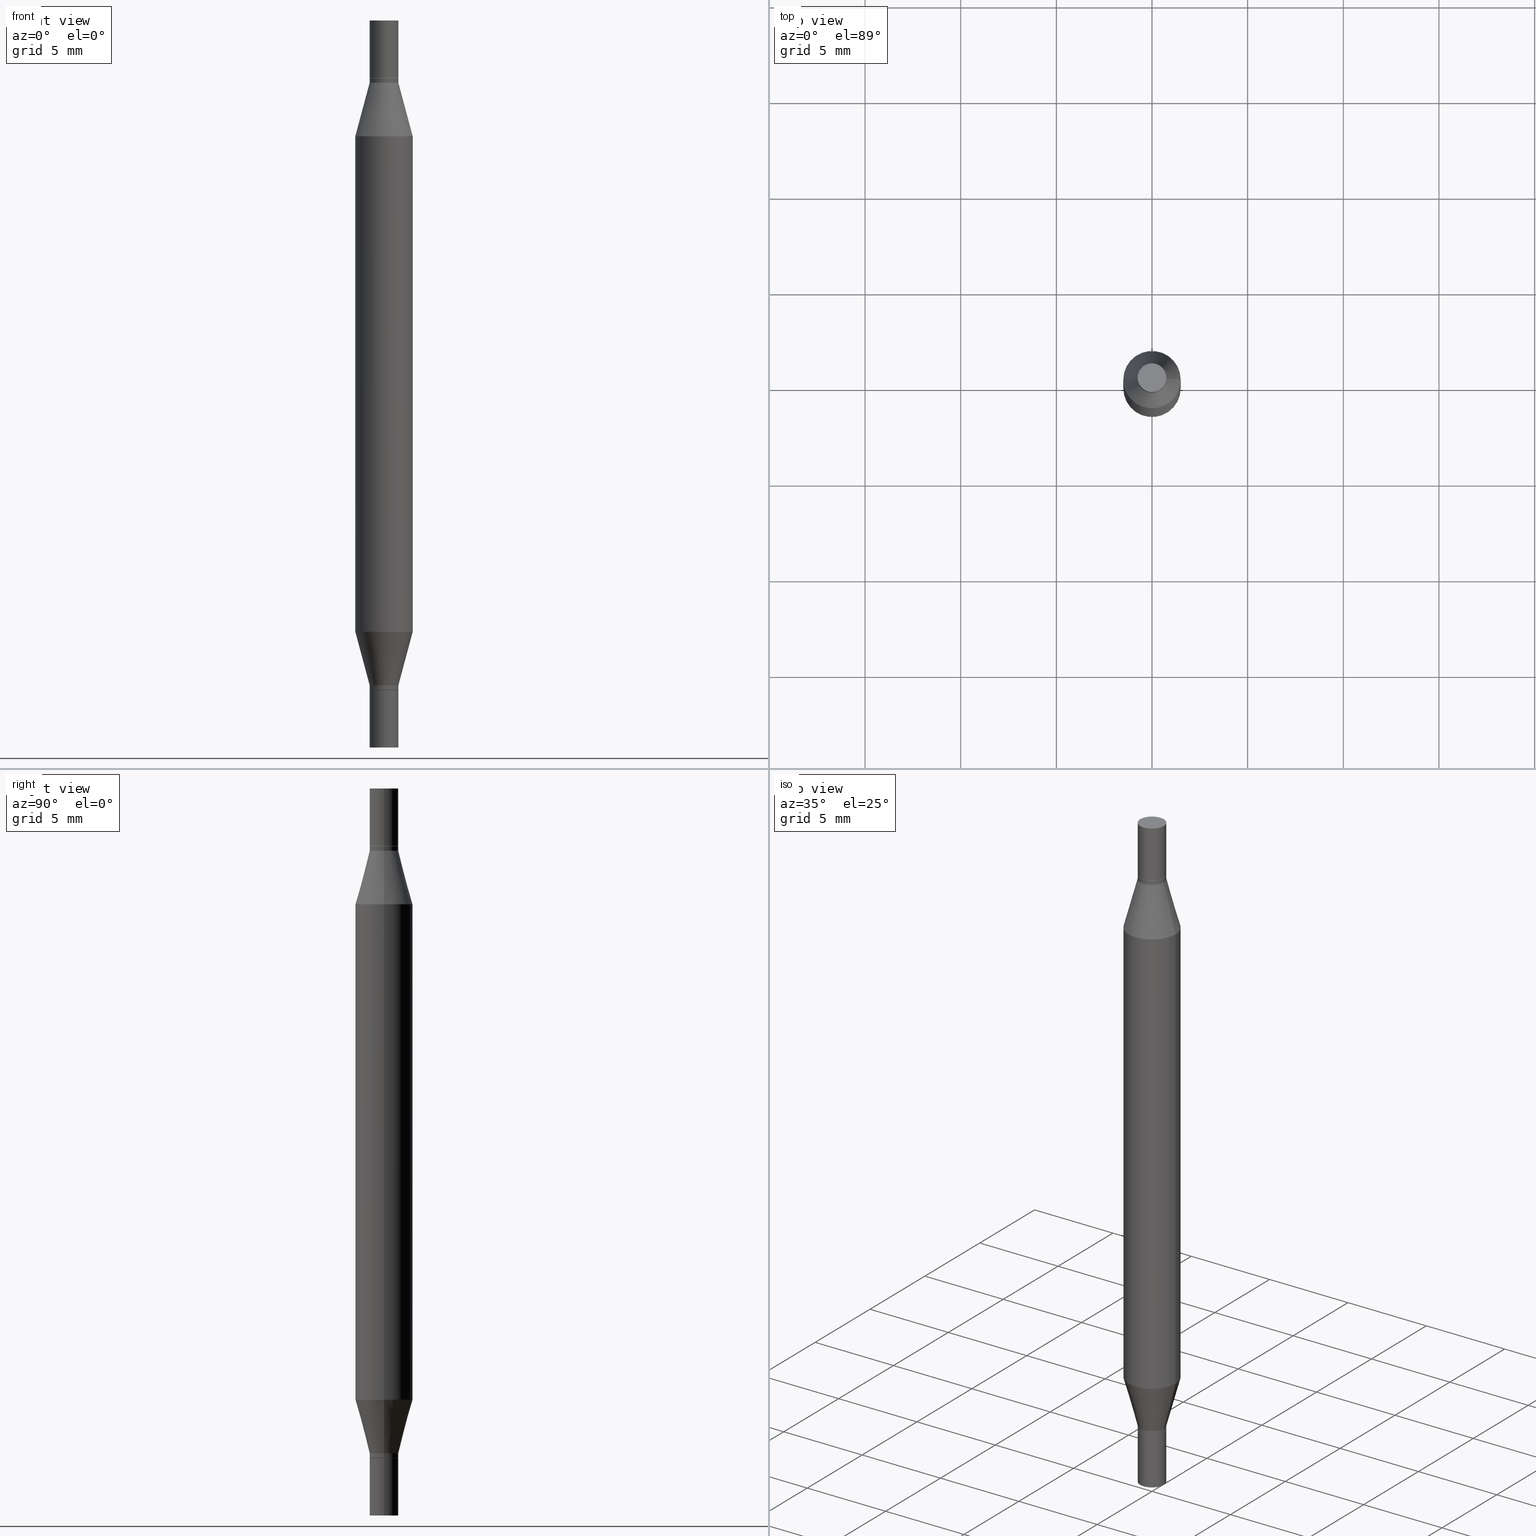
[diagram: canonical four-view strip — front | top / right | iso, engineering-drawing reading convention]
A machine part, canonical four-view strip (front | top / right | iso — engineering-drawing reading convention). The complete STEP part file that produces these views, byte-faithful:
ISO-10303-21;
HEADER;
FILE_DESCRIPTION (( 'STEP AP203' ),
    '1' );
FILE_NAME ('41509.STEP',
    '2024-03-04T16:09:11',
    ( '' ),
    ( '' ),
    'SwSTEP 2.0',
    'SolidWorks 2023',
    '' );
FILE_SCHEMA (( 'CONFIG_CONTROL_DESIGN' ));
ENDSEC;

DATA;
#1 = DIRECTION ( 'NONE',  ( -2.445468806185136597E-29, 3.491481338843145583E-15, 1.000000000000000000 ) ) ;
#2 = PERSON_AND_ORGANIZATION ( #649, #345 ) ;
#3 = DIRECTION ( 'NONE',  ( -2.445468806185136597E-29, -3.491805094961124077E-15, -1.000000000000000000 ) ) ;
#4 = EDGE_LOOP ( 'NONE', ( #74, #615, #99, #866 ) ) ;
#5 = EDGE_CURVE ( 'NONE', #273, #442, #785, .T. ) ;
#6 = ADVANCED_FACE ( 'NONE', ( #823 ), #702, .T. ) ;
#7 = DIRECTION ( 'NONE',  ( 1.000000000000000000, -6.982962677686281699E-15, 0.000000000000000000 ) ) ;
#8 = ORIENTED_EDGE ( 'NONE', *, *, #352, .F. ) ;
#9 = CARTESIAN_POINT ( 'NONE',  ( 3.368633280520025146E-29, -4.138858984983355777E-16, -0.1185999999999999277 ) ) ;
#10 = PERSON_AND_ORGANIZATION_ROLE ( 'design_supplier' ) ;
#11 = CARTESIAN_POINT ( 'NONE',  ( 0.000000000000000000, -5.223847416807283040E-15, -1.496099999999999985 ) ) ;
#12 = EDGE_LOOP ( 'NONE', ( #535, #693, #69, #966 ) ) ;
#13 = LINE ( 'NONE', #671, #833 ) ;
#14 = AXIS2_PLACEMENT_3D ( 'NONE', #667, #524, #473 ) ;
#15 = VECTOR ( 'NONE', #630, 39.37007874015748143 ) ;
#16 = CIRCLE ( 'NONE', #281, 0.02954999999999991661 ) ;
#17 = LINE ( 'NONE', #244, #514 ) ;
#18 = DIRECTION ( 'NONE',  ( 1.000000000000000000, -6.982962677686265922E-15, 4.876176775795935793E-29 ) ) ;
#19 = VERTEX_POINT ( 'NONE', #445 ) ;
#20 = EDGE_CURVE ( 'NONE', #158, #929, #876, .T. ) ;
#21 = CARTESIAN_POINT ( 'NONE',  ( 3.369856014923117948E-29, -4.121399959508538653E-16, -0.1181000000000000383 ) ) ;
#22 = DIRECTION ( 'NONE',  ( -2.445468806185136597E-29, 3.491481338843145583E-15, 1.000000000000000000 ) ) ;
#23 = FACE_OUTER_BOUND ( 'NONE', #420, .T. ) ;
#24 = VERTEX_POINT ( 'NONE', #206 ) ;
#25 = CARTESIAN_POINT ( 'NONE',  ( 3.345645873741884627E-29, -4.467088663909703532E-16, -0.1280000000000001137 ) ) ;
#26 = FACE_OUTER_BOUND ( 'NONE', #4, .T. ) ;
#27 = ORIENTED_EDGE ( 'NONE', *, *, #63, .T. ) ;
#28 = CIRCLE ( 'NONE', #486, 0.02954999999999999988 ) ;
#29 = DIRECTION ( 'NONE',  ( 2.445468806185136597E-29, 3.491805094961124077E-15, 1.000000000000000000 ) ) ;
#30 = CIRCLE ( 'NONE', #637, 0.02904999999999999596 ) ;
#31 = CYLINDRICAL_SURFACE ( 'NONE', #296, 0.05905000000000000526 ) ;
#32 = CIRCLE ( 'NONE', #331, 0.02904999999999999596 ) ;
#33 = CARTESIAN_POINT ( 'NONE',  ( 2.063465471256628659E-16, 0.02954999999999519122, -1.377999999999999892 ) ) ;
#34 = AXIS2_PLACEMENT_3D ( 'NONE', #552, #859, #539 ) ;
#35 = EDGE_LOOP ( 'NONE', ( #532, #595, #480, #384 ) ) ;
#36 = DIRECTION ( 'NONE',  ( -1.000000000000000000, 6.982962677686265922E-15, -2.260776888683160832E-33 ) ) ;
#37 = ADVANCED_FACE ( 'NONE', ( #659 ), #735, .F. ) ;
#38 = CARTESIAN_POINT ( 'NONE',  ( -0.02954999999999991661, -2.439811505568221169E-16, -0.1280000000000001137 ) ) ;
#39 = DIRECTION ( 'NONE',  ( 1.000000000000000000, -6.982962677686265133E-15, 0.000000000000000000 ) ) ;
#40 = EDGE_LOOP ( 'NONE', ( #726, #130 ) ) ;
#41 = APPROVAL_DATE_TIME ( #199, #464 ) ;
#42 = CARTESIAN_POINT ( 'NONE',  ( 0.000000000000000000, -5.223847416807283040E-15, -1.496099999999999985 ) ) ;
#43 = DIRECTION ( 'NONE',  ( 1.000000000000000000, -6.982962677686281699E-15, 0.000000000000000000 ) ) ;
#44 =( NAMED_UNIT ( * ) PLANE_ANGLE_UNIT ( ) SI_UNIT ( $, .RADIAN. ) );
#45 = EDGE_LOOP ( 'NONE', ( #340, #497, #641, #232 ) ) ;
#46 = AXIS2_PLACEMENT_3D ( 'NONE', #563, #963, #869 ) ;
#47 = CLOSED_SHELL ( 'NONE', ( #353, #451, #421, #522, #456, #904, #795, #237, #804, #782 ) ) ;
#48 = CARTESIAN_POINT ( 'NONE',  ( 0.000000000000000000, -5.223847416807283040E-15, -1.496099999999999985 ) ) ;
#49 = MANIFOLD_SOLID_BREP ( 'Body-Move/Copy2[1]', #892 ) ;
#50 = CIRCLE ( 'NONE', #450, 0.05904999999999999832 ) ;
#51 = ORIENTED_EDGE ( 'NONE', *, *, #567, .F. ) ;
#52 = VECTOR ( 'NONE', #455, 39.37007874015747433 ) ;
#53 = ADVANCED_FACE ( 'NONE', ( #578 ), #152, .T. ) ;
#54 = MANIFOLD_SOLID_BREP ( 'Mirror1[4]', #846 ) ;
#55 = CYLINDRICAL_SURFACE ( 'NONE', #419, 0.02954999999999992008 ) ;
#56 = MANIFOLD_SOLID_BREP ( 'Mirror1[1]', #47 ) ;
#57 = ORIENTED_EDGE ( 'NONE', *, *, #847, .T. ) ;
#58 = EDGE_CURVE ( 'NONE', #723, #620, #575, .T. ) ;
#59 = CARTESIAN_POINT ( 'NONE',  ( 0.000000000000000000, -5.223847416807283040E-15, -1.496099999999999985 ) ) ;
#60 =( NAMED_UNIT ( * ) SI_UNIT ( $, .STERADIAN. ) SOLID_ANGLE_UNIT ( ) );
#61 = DIRECTION ( 'NONE',  ( 2.445468806185136597E-29, 3.491805094961124077E-15, 1.000000000000000000 ) ) ;
#62 = ORIENTED_EDGE ( 'NONE', *, *, #187, .F. ) ;
#63 = EDGE_CURVE ( 'NONE', #916, #94, #503, .T. ) ;
#64 = DIRECTION ( 'NONE',  ( 2.438088387897959208E-29, 3.491805094961123683E-15, 1.000000000000000000 ) ) ;
#65 = CARTESIAN_POINT ( 'NONE',  ( 3.510245998652574141E-29, -5.436150950004720167E-15, -1.496099999999999985 ) ) ;
#66 = APPROVAL_PERSON_ORGANIZATION ( #972, #789, #887 ) ;
#67 = VECTOR ( 'NONE', #139, 39.37007874015748143 ) ;
#68 = AXIS2_PLACEMENT_3D ( 'NONE', #108, #834, #763 ) ;
#69 = ORIENTED_EDGE ( 'NONE', *, *, #607, .T. ) ;
#70 = VECTOR ( 'NONE', #379, 39.37007874015748143 ) ;
#71 = AXIS2_PLACEMENT_3D ( 'NONE', #126, #504, #274 ) ;
#72 = PLANE ( 'NONE',  #133 ) ;
#73 = ORIENTED_EDGE ( 'NONE', *, *, #624, .T. ) ;
#74 = ORIENTED_EDGE ( 'NONE', *, *, #349, .F. ) ;
#75 = CARTESIAN_POINT ( 'NONE',  ( 3.345645873741884627E-29, -4.467088663909703532E-16, -0.1280000000000001137 ) ) ;
#76 = CARTESIAN_POINT ( 'NONE',  ( 3.368633280520025146E-29, -4.138858984983355777E-16, -0.1185999999999999277 ) ) ;
#77 = VERTEX_POINT ( 'NONE', #282 ) ;
#78 = CARTESIAN_POINT ( 'NONE',  ( 0.05904999999999999832, -4.804643186156564878E-15, -1.258004501176717804 ) ) ;
#79 = CARTESIAN_POINT ( 'NONE',  ( 3.510245998652574141E-29, -2.123035331974368305E-16, 0.000000000000000000 ) ) ;
#80 = PERSON_AND_ORGANIZATION ( #649, #345 ) ;
#81 = DIRECTION ( 'NONE',  ( -0.7071067811865656694, 7.493145998870420424E-15, 0.7071067811865294761 ) ) ;
#82 = EDGE_CURVE ( 'NONE', #19, #412, #602, .T. ) ;
#83 = CIRCLE ( 'NONE', #327, 0.02954999999999992008 ) ;
#84 = ORIENTED_EDGE ( 'NONE', *, *, #968, .T. ) ;
#85 = CYLINDRICAL_SURFACE ( 'NONE', #391, 0.02954999999999992008 ) ;
#86 = AXIS2_PLACEMENT_3D ( 'NONE', #65, #360, #964 ) ;
#87 = EDGE_CURVE ( 'NONE', #77, #364, #371, .T. ) ;
#88 = AXIS2_PLACEMENT_3D ( 'NONE', #672, #97, #43 ) ;
#89 = CARTESIAN_POINT ( 'NONE',  ( 0.000000000000000000, -5.223847416807283040E-15, -1.496099999999999985 ) ) ;
#90 = ORIENTED_EDGE ( 'NONE', *, *, #507, .F. ) ;
#91 = DIRECTION ( 'NONE',  ( 1.000000000000000000, -6.982962677686261977E-15, 0.000000000000000000 ) ) ;
#92 = DIRECTION ( 'NONE',  ( 1.000000000000000000, -6.982962677686265922E-15, 0.000000000000000000 ) ) ;
#93 = CYLINDRICAL_SURFACE ( 'NONE', #135, 0.05905000000000000526 ) ;
#94 = VERTEX_POINT ( 'NONE', #370 ) ;
#95 = DIRECTION ( 'NONE',  ( 2.445468806185136597E-29, 3.491805094961124077E-15, 1.000000000000000000 ) ) ;
#96 = EDGE_CURVE ( 'NONE', #373, #351, #28, .T. ) ;
#97 = DIRECTION ( 'NONE',  ( -2.445468806185136597E-29, 3.491481338843145583E-15, 1.000000000000000000 ) ) ;
#98 = CARTESIAN_POINT ( 'NONE',  ( -0.02954999999999991661, -4.566730241254198034E-15, -1.368099999999999872 ) ) ;
#99 = ORIENTED_EDGE ( 'NONE', *, *, #938, .T. ) ;
#100 = LINE ( 'NONE', #759, #223 ) ;
#101 = APPROVAL_PERSON_ORGANIZATION ( #269, #762, #568 ) ;
#102 = EDGE_CURVE ( 'NONE', #590, #283, #978, .T. ) ;
#103 = AXIS2_PLACEMENT_3D ( 'NONE', #781, #769, #394 ) ;
#104 = CC_DESIGN_APPROVAL ( #789, ( #891 ) ) ;
#105 = CARTESIAN_POINT ( 'NONE',  ( 3.345645873741884627E-29, -4.776695619671307391E-15, -1.368099999999999872 ) ) ;
#106 = DIRECTION ( 'NONE',  ( 2.445468806185136597E-29, 3.491805094961124077E-15, 1.000000000000000000 ) ) ;
#107 = ORIENTED_EDGE ( 'NONE', *, *, #407, .T. ) ;
#108 = CARTESIAN_POINT ( 'NONE',  ( 3.369856014923117948E-29, -4.121399959508538653E-16, -0.1181000000000000383 ) ) ;
#109 = FACE_OUTER_BOUND ( 'NONE', #655, .T. ) ;
#110 = ORIENTED_EDGE ( 'NONE', *, *, #381, .F. ) ;
#111 = CARTESIAN_POINT ( 'NONE',  ( 0.02954999999999992008, -5.430193963932912651E-15, -1.496099999999999985 ) ) ;
#112 = EDGE_CURVE ( 'NONE', #620, #165, #807, .T. ) ;
#113 = DIRECTION ( 'NONE',  ( -0.2588190451025213501, -1.597197180879714326E-15, -0.9659258262890682012 ) ) ;
#114 = DIRECTION ( 'NONE',  ( -2.445468806185136877E-29, -3.491805094961123683E-15, -1.000000000000000000 ) ) ;
#115 = ORIENTED_EDGE ( 'NONE', *, *, #551, .F. ) ;
#116 = ADVANCED_FACE ( 'NONE', ( #588 ), #730, .F. ) ;
#117 = EDGE_CURVE ( 'NONE', #412, #19, #193, .T. ) ;
#118 = FACE_OUTER_BOUND ( 'NONE', #313, .T. ) ;
#119 = CIRCLE ( 'NONE', #239, 0.02954999999999991661 ) ;
#120 = CARTESIAN_POINT ( 'NONE',  ( 0.000000000000000000, 0.000000000000000000, 0.000000000000000000 ) ) ;
#121 = VECTOR ( 'NONE', #295, 39.37007874015748143 ) ;
#122 = DIRECTION ( 'NONE',  ( 1.000000000000000000, -6.982962677686273021E-15, 0.000000000000000000 ) ) ;
#123 = VERTEX_POINT ( 'NONE', #598 ) ;
#124 = CARTESIAN_POINT ( 'NONE',  ( 2.063465471256628659E-16, 0.02954999999999958701, -0.1181000000000003020 ) ) ;
#125 = CARTESIAN_POINT ( 'NONE',  ( 3.345645873741884627E-29, -4.467088663909703532E-16, -0.1280000000000001137 ) ) ;
#126 = CARTESIAN_POINT ( 'NONE',  ( 0.000000000000000000, 0.000000000000000000, 0.000000000000000000 ) ) ;
#127 = EDGE_LOOP ( 'NONE', ( #342, #884 ) ) ;
#128 = CARTESIAN_POINT ( 'NONE',  ( 0.02954999999999991661, -4.983042166796936213E-15, -1.368099999999999872 ) ) ;
#129 = CC_DESIGN_PERSON_AND_ORGANIZATION_ASSIGNMENT ( #376, #10, ( #891 ) ) ;
#130 = ORIENTED_EDGE ( 'NONE', *, *, #623, .F. ) ;
#131 = APPLICATION_CONTEXT ( 'configuration controlled 3d designs of mechanical parts and assemblies' ) ;
#132 = ADVANCED_FACE ( 'NONE', ( #231 ), #294, .T. ) ;
#133 = AXIS2_PLACEMENT_3D ( 'NONE', #953, #362, #292 ) ;
#134 = ORIENTED_EDGE ( 'NONE', *, *, #952, .F. ) ;
#135 = AXIS2_PLACEMENT_3D ( 'NONE', #739, #3, #594 ) ;
#136 = PERSON_AND_ORGANIZATION_ROLE ( 'creator' ) ;
#137 = ORIENTED_EDGE ( 'NONE', *, *, #167, .F. ) ;
#138 = ORIENTED_EDGE ( 'NONE', *, *, #872, .T. ) ;
#139 = DIRECTION ( 'NONE',  ( -2.445468806185136877E-29, 3.491481338843145188E-15, 1.000000000000000000 ) ) ;
#140 = ORIENTED_EDGE ( 'NONE', *, *, #380, .F. ) ;
#141 = EDGE_CURVE ( 'NONE', #283, #590, #83, .T. ) ;
#142 = DIRECTION ( 'NONE',  ( 2.445468806185136597E-29, 3.491805094961124077E-15, 1.000000000000000000 ) ) ;
#143 = DIRECTION ( 'NONE',  ( -0.000000000000000000, -3.491643216902134830E-15, -1.000000000000000000 ) ) ;
#144 = AXIS2_PLACEMENT_3D ( 'NONE', #791, #259, #325 ) ;
#145 = ORIENTED_EDGE ( 'NONE', *, *, #339, .T. ) ;
#146 = AXIS2_PLACEMENT_3D ( 'NONE', #660, #840, #290 ) ;
#147 =( GEOMETRIC_REPRESENTATION_CONTEXT ( 3 ) GLOBAL_UNCERTAINTY_ASSIGNED_CONTEXT ( ( #268 ) ) GLOBAL_UNIT_ASSIGNED_CONTEXT ( ( #509, #44, #60 ) ) REPRESENTATION_CONTEXT ( 'NONE', 'WORKASPACE' ) );
#148 = CARTESIAN_POINT ( 'NONE',  ( 0.000000000000000000, 0.000000000000000000, -0.7480499999999999927 ) ) ;
#149 = DIRECTION ( 'NONE',  ( 0.000000000000000000, 1.000000000000000000, -4.626330217890369336E-15 ) ) ;
#150 = LINE ( 'NONE', #441, #650 ) ;
#151 = ORIENTED_EDGE ( 'NONE', *, *, #229, .T. ) ;
#152 = CYLINDRICAL_SURFACE ( 'NONE', #404, 0.02954999999999999988 ) ;
#153 = EDGE_CURVE ( 'NONE', #852, #606, #448, .T. ) ;
#154 = ORIENTED_EDGE ( 'NONE', *, *, #311, .T. ) ;
#155 = CARTESIAN_POINT ( 'NONE',  ( 0.02954999999999992008, -6.202324456239627230E-16, -0.1185999999999999277 ) ) ;
#156 = EDGE_CURVE ( 'NONE', #426, #123, #312, .T. ) ;
#157 = CARTESIAN_POINT ( 'NONE',  ( 0.02954999999999999988, -5.429951778168858482E-15, -1.496099999999999985 ) ) ;
#158 = VERTEX_POINT ( 'NONE', #157 ) ;
#159 = DIRECTION ( 'NONE',  ( -2.445468806185136877E-29, -3.491805094961123683E-15, -1.000000000000000000 ) ) ;
#160 = AXIS2_PLACEMENT_3D ( 'NONE', #316, #678, #914 ) ;
#161 = CIRCLE ( 'NONE', #406, 0.02954999999999999988 ) ;
#162 = AXIS2_PLACEMENT_3D ( 'NONE', #285, #806, #208 ) ;
#163 = DIRECTION ( 'NONE',  ( 2.445468806185136597E-29, 3.491805094961124077E-15, 1.000000000000000000 ) ) ;
#164 = DIRECTION ( 'NONE',  ( -2.445468806185136597E-29, -3.491805094961124077E-15, -1.000000000000000000 ) ) ;
#165 = VERTEX_POINT ( 'NONE', #839 ) ;
#166 = CARTESIAN_POINT ( 'NONE',  ( 0.02904999999999999596, -6.149950617376399263E-16, -0.1181000000000000383 ) ) ;
#167 = EDGE_CURVE ( 'NONE', #620, #916, #719, .T. ) ;
#168 = PRODUCT_DEFINITION_SHAPE ( 'NONE', 'NONE',  #861 ) ;
#169 = CARTESIAN_POINT ( 'NONE',  ( 3.076410765668156654E-29, -4.392299240039190746E-15, -1.258004501176717804 ) ) ;
#170 = ORIENTED_EDGE ( 'NONE', *, *, #298, .F. ) ;
#171 = LINE ( 'NONE', #166, #638 ) ;
#172 = EDGE_CURVE ( 'NONE', #395, #201, #560, .T. ) ;
#173 = CYLINDRICAL_SURFACE ( 'NONE', #405, 0.02954999999999999988 ) ;
#174 = FACE_OUTER_BOUND ( 'NONE', #275, .T. ) ;
#175 = FACE_OUTER_BOUND ( 'NONE', #12, .T. ) ;
#176 = EDGE_LOOP ( 'NONE', ( #564, #906, #260, #644 ) ) ;
#177 = AXIS2_PLACEMENT_3D ( 'NONE', #42, #572, #512 ) ;
#178 = VECTOR ( 'NONE', #536, 39.37007874015748143 ) ;
#179 = EDGE_CURVE ( 'NONE', #77, #590, #17, .T. ) ;
#180 = DIRECTION ( 'NONE',  ( 1.000000000000000000, -6.982962677686280910E-15, 0.000000000000000000 ) ) ;
#181 = FACE_OUTER_BOUND ( 'NONE', #890, .T. ) ;
#182 = VERTEX_POINT ( 'NONE', #673 ) ;
#183 = DIRECTION ( 'NONE',  ( -2.445468806185136597E-29, 3.491481338843145583E-15, 1.000000000000000000 ) ) ;
#184 = EDGE_CURVE ( 'NONE', #934, #674, #767, .T. ) ;
#185 = DIRECTION ( 'NONE',  ( 1.000000000000000000, -6.982962677686266711E-15, 0.000000000000000000 ) ) ;
#186 = EDGE_LOOP ( 'NONE', ( #687, #746, #27, #540 ) ) ;
#187 = EDGE_CURVE ( 'NONE', #165, #182, #247, .T. ) ;
#188 = LINE ( 'NONE', #481, #329 ) ;
#189 = DIRECTION ( 'NONE',  ( -2.445468806185136877E-29, -3.491805094961123683E-15, -1.000000000000000000 ) ) ;
#190 = DIRECTION ( 'NONE',  ( 1.000000000000000000, -6.982962677686266711E-15, 0.000000000000000000 ) ) ;
#191 = ORIENTED_EDGE ( 'NONE', *, *, #874, .F. ) ;
#192 = COORDINATED_UNIVERSAL_TIME_OFFSET ( 5, 0, .BEHIND. ) ;
#193 = CIRCLE ( 'NONE', #798, 0.05905000000000000526 ) ;
#194 = VECTOR ( 'NONE', #546, 39.37007874015748143 ) ;
#195 = LINE ( 'NONE', #409, #15 ) ;
#196 = CONICAL_SURFACE ( 'NONE', #686, 0.02904999999999999596, 0.7853981633974739252 ) ;
#197 = CARTESIAN_POINT ( 'NONE',  ( 3.369856014923117948E-29, -4.121399959508538653E-16, -0.1181000000000000383 ) ) ;
#198 = ORIENTED_EDGE ( 'NONE', *, *, #525, .F. ) ;
#199 = DATE_AND_TIME ( #708, #454 ) ;
#200 = DIRECTION ( 'NONE',  ( -2.445468806185136597E-29, 3.491481338843145583E-15, 1.000000000000000000 ) ) ;
#201 = VERTEX_POINT ( 'NONE', #460 ) ;
#202 = ORIENTED_EDGE ( 'NONE', *, *, #670, .F. ) ;
#203 = VECTOR ( 'NONE', #387, 39.37007874015747433 ) ;
#204 = FACE_OUTER_BOUND ( 'NONE', #35, .T. ) ;
#205 = AXIS2_PLACEMENT_3D ( 'NONE', #300, #837, #527 ) ;
#206 = CARTESIAN_POINT ( 'NONE',  ( -0.02954999999999999988, -3.221189259251762717E-18, 7.347294627798473966E-31 ) ) ;
#207 = VECTOR ( 'NONE', #159, 39.37007874015748143 ) ;
#208 = DIRECTION ( 'NONE',  ( 1.000000000000000000, -6.982962677686266711E-15, 4.876176775795935793E-29 ) ) ;
#209 = EDGE_CURVE ( 'NONE', #511, #558, #704, .T. ) ;
#210 = CARTESIAN_POINT ( 'NONE',  ( 1.829332940466791194E-29, -2.611802615521614830E-15, -0.7480499999999999927 ) ) ;
#211 = ADVANCED_FACE ( 'NONE', ( #538 ), #173, .T. ) ;
#212 = EDGE_LOOP ( 'NONE', ( #151, #633 ) ) ;
#213 = CARTESIAN_POINT ( 'NONE',  ( 3.345645873741884627E-29, -4.467088663909703532E-16, -0.1280000000000001137 ) ) ;
#214 = DIRECTION ( 'NONE',  ( 1.000000000000000000, -6.982962677686261977E-15, 0.000000000000000000 ) ) ;
#215 = DIRECTION ( 'NONE',  ( -0.000000000000000000, -3.491643216902134830E-15, -1.000000000000000000 ) ) ;
#216 = EDGE_LOOP ( 'NONE', ( #825, #198 ) ) ;
#217 = CARTESIAN_POINT ( 'NONE',  ( 3.369856014923117948E-29, -4.811261284925853951E-15, -1.377999999999999892 ) ) ;
#218 = DIRECTION ( 'NONE',  ( -2.445468806185136877E-29, 3.491481338843145188E-15, 1.000000000000000000 ) ) ;
#219 = CIRCLE ( 'NONE', #682, 0.02904999999999999596 ) ;
#220 = CARTESIAN_POINT ( 'NONE',  ( 3.345645873741884627E-29, -4.467088663909703532E-16, -0.1280000000000001137 ) ) ;
#221 = VECTOR ( 'NONE', #756, 39.37007874015747433 ) ;
#222 = ORIENTED_EDGE ( 'NONE', *, *, #153, .T. ) ;
#223 = VECTOR ( 'NONE', #319, 39.37007874015748143 ) ;
#224 = EDGE_CURVE ( 'NONE', #182, #553, #813, .T. ) ;
#225 = CARTESIAN_POINT ( 'NONE',  ( 3.658665880933582389E-29, 2.421857640538043390E-19, 0.000000000000000000 ) ) ;
#226 = CARTESIAN_POINT ( 'NONE',  ( 0.02954999999999992008, -5.430193963932912651E-15, -1.496099999999999985 ) ) ;
#227 = ORIENTED_EDGE ( 'NONE', *, *, #670, .T. ) ;
#228 = CARTESIAN_POINT ( 'NONE',  ( 0.02904999999999999596, -5.014116350712640554E-15, -1.377999999999999892 ) ) ;
#229 = EDGE_CURVE ( 'NONE', #771, #679, #571, .T. ) ;
#230 = PERSON_AND_ORGANIZATION_ROLE ( 'creator' ) ;
#231 = FACE_OUTER_BOUND ( 'NONE', #367, .T. ) ;
#232 = ORIENTED_EDGE ( 'NONE', *, *, #433, .T. ) ;
#233 = DIRECTION ( 'NONE',  ( 1.000000000000000000, -6.982962677686264344E-15, 0.000000000000000000 ) ) ;
#234 = DIRECTION ( 'NONE',  ( -0.7071067811865656694, 2.382025595312421833E-15, -0.7071067811865294761 ) ) ;
#235 = LINE ( 'NONE', #226, #436 ) ;
#236 = ORIENTED_EDGE ( 'NONE', *, *, #96, .T. ) ;
#237 = ADVANCED_FACE ( 'NONE', ( #899 ), #541, .T. ) ;
#238 = DIRECTION ( 'NONE',  ( 1.000000000000000000, -6.982962677686278543E-15, 0.000000000000000000 ) ) ;
#239 = AXIS2_PLACEMENT_3D ( 'NONE', #125, #625, #863 ) ;
#240 = CIRCLE ( 'NONE', #910, 0.02954999999999999988 ) ;
#241 = CYLINDRICAL_SURFACE ( 'NONE', #877, 0.02954999999999992008 ) ;
#242 = ORIENTED_EDGE ( 'NONE', *, *, #253, .T. ) ;
#243 = DIRECTION ( 'NONE',  ( -2.445468806185136597E-29, 3.491481338843145583E-15, 1.000000000000000000 ) ) ;
#244 = CARTESIAN_POINT ( 'NONE',  ( -0.02904999999999999596, -2.128425291155909173E-16, -0.1181000000000000383 ) ) ;
#245 = DIRECTION ( 'NONE',  ( -2.445468806185136597E-29, 3.491481338843145583E-15, 1.000000000000000000 ) ) ;
#246 = EDGE_LOOP ( 'NONE', ( #459, #249, #90, #797 ) ) ;
#247 = LINE ( 'NONE', #98, #221 ) ;
#248 = LINE ( 'NONE', #542, #639 ) ;
#249 = ORIENTED_EDGE ( 'NONE', *, *, #952, .T. ) ;
#250 = CARTESIAN_POINT ( 'NONE',  ( -0.02904999999999999596, -2.120003558898884021E-16, -0.1181000000000000383 ) ) ;
#251 = AXIS2_PLACEMENT_3D ( 'NONE', #584, #814, #737 ) ;
#252 = AXIS2_PLACEMENT_3D ( 'NONE', #933, #626, #865 ) ;
#253 = EDGE_CURVE ( 'NONE', #580, #558, #302, .T. ) ;
#254 = DIRECTION ( 'NONE',  ( -2.445468806185136877E-29, -3.491805094961123683E-15, -1.000000000000000000 ) ) ;
#255 = DIRECTION ( 'NONE',  ( 2.445468806185136597E-29, 3.491805094961124077E-15, 1.000000000000000000 ) ) ;
#256 = ORIENTED_EDGE ( 'NONE', *, *, #651, .F. ) ;
#257 = CARTESIAN_POINT ( 'NONE',  ( 3.076410765668156654E-29, -8.311408901143919011E-16, -0.2380954988232820146 ) ) ;
#258 = DIRECTION ( 'NONE',  ( -2.445468806185136597E-29, -3.491805094961124077E-15, -1.000000000000000000 ) ) ;
#259 = DIRECTION ( 'NONE',  ( -2.445468806185136597E-29, 3.491481338843145583E-15, 1.000000000000000000 ) ) ;
#260 = ORIENTED_EDGE ( 'NONE', *, *, #597, .T. ) ;
#261 = LINE ( 'NONE', #709, #194 ) ;
#262 = PLANE ( 'NONE',  #267 ) ;
#263 = ORIENTED_EDGE ( 'NONE', *, *, #727, .F. ) ;
#264 = DIRECTION ( 'NONE',  ( 2.445468806185136597E-29, 3.491805094961124077E-15, 1.000000000000000000 ) ) ;
#265 = ADVANCED_FACE ( 'NONE', ( #751 ), #241, .T. ) ;
#266 = CIRCLE ( 'NONE', #88, 0.02954999999999991661 ) ;
#267 = AXIS2_PLACEMENT_3D ( 'NONE', #388, #410, #18 ) ;
#268 = UNCERTAINTY_MEASURE_WITH_UNIT (LENGTH_MEASURE( 1.000000000000000082E-05 ), #509, 'distance_accuracy_value', 'NONE');
#269 = PERSON_AND_ORGANIZATION ( #649, #345 ) ;
#270 = LOCAL_TIME ( 11, 9, 11.00000000000000000, #722 ) ;
#271 = ORIENTED_EDGE ( 'NONE', *, *, #82, .T. ) ;
#272 = ADVANCED_BREP_SHAPE_REPRESENTATION ( '41509', ( #49, #56, #699, #54, #368, #71 ), #147 ) ;
#273 = VERTEX_POINT ( 'NONE', #320 ) ;
#274 = DIRECTION ( 'NONE',  ( 1.000000000000000000, 0.000000000000000000, 0.000000000000000000 ) ) ;
#275 = EDGE_LOOP ( 'NONE', ( #566, #484, #110, #955 ) ) ;
#276 = ADVANCED_FACE ( 'NONE', ( #690 ), #750, .T. ) ;
#277 = AXIS2_PLACEMENT_3D ( 'NONE', #516, #969, #818 ) ;
#278 = CIRCLE ( 'NONE', #604, 0.02954999999999991661 ) ;
#279 = PLANE ( 'NONE',  #688 ) ;
#280 = EDGE_CURVE ( 'NONE', #351, #442, #550, .T. ) ;
#281 = AXIS2_PLACEMENT_3D ( 'NONE', #662, #913, #447 ) ;
#282 = CARTESIAN_POINT ( 'NONE',  ( -0.02904999999999999596, -2.120003558898884021E-16, -0.1181000000000000383 ) ) ;
#283 = VERTEX_POINT ( 'NONE', #482 ) ;
#284 = CYLINDRICAL_SURFACE ( 'NONE', #946, 0.02954999999999999988 ) ;
#285 = CARTESIAN_POINT ( 'NONE',  ( 0.000000000000000000, 0.000000000000000000, 0.000000000000000000 ) ) ;
#286 = CARTESIAN_POINT ( 'NONE',  ( 3.369856014923117948E-29, -4.121399959508538653E-16, -0.1181000000000000383 ) ) ;
#287 = ORIENTED_EDGE ( 'NONE', *, *, #853, .F. ) ;
#288 = DIRECTION ( 'NONE',  ( 1.000000000000000000, -6.982962677686261977E-15, 0.000000000000000000 ) ) ;
#289 = ORIENTED_EDGE ( 'NONE', *, *, #727, .T. ) ;
#290 = DIRECTION ( 'NONE',  ( 1.000000000000000000, -6.982962677686278543E-15, 0.000000000000000000 ) ) ;
#291 = VERTEX_POINT ( 'NONE', #490 ) ;
#292 = DIRECTION ( 'NONE',  ( 1.000000000000000000, -6.982962677686265922E-15, 2.260776888683160832E-33 ) ) ;
#293 = CARTESIAN_POINT ( 'NONE',  ( -0.02954999999999992008, 2.099653784171090371E-16, -1.453545319170320697E-30 ) ) ;
#294 = CONICAL_SURFACE ( 'NONE', #732, 0.02954999999999991661, 0.2617993877991500740 ) ;
#295 = DIRECTION ( 'NONE',  ( -2.445468806185136877E-29, 3.491481338843145188E-15, 1.000000000000000000 ) ) ;
#296 = AXIS2_PLACEMENT_3D ( 'NONE', #332, #258, #854 ) ;
#297 = ORIENTED_EDGE ( 'NONE', *, *, #328, .F. ) ;
#298 = EDGE_CURVE ( 'NONE', #123, #426, #278, .T. ) ;
#299 = AXIS2_PLACEMENT_3D ( 'NONE', #33, #317, #547 ) ;
#300 = CARTESIAN_POINT ( 'NONE',  ( 3.369856014923117948E-29, -4.121399959508538653E-16, -0.1181000000000000383 ) ) ;
#301 = DATE_TIME_ROLE ( 'creation_date' ) ;
#302 = LINE ( 'NONE', #911, #203 ) ;
#303 = VERTEX_POINT ( 'NONE', #784 ) ;
#304 = CARTESIAN_POINT ( 'NONE',  ( -0.02954999999999992008, -2.111581826641858869E-16, -0.1185999999999999277 ) ) ;
#305 = DATE_AND_TIME ( #523, #707 ) ;
#306 = CARTESIAN_POINT ( 'NONE',  ( 0.000000000000000000, -5.223847416807283040E-15, -1.496099999999999985 ) ) ;
#307 = ORIENTED_EDGE ( 'NONE', *, *, #117, .T. ) ;
#308 = ADVANCED_FACE ( 'NONE', ( #937 ), #556, .T. ) ;
#309 = SECURITY_CLASSIFICATION_LEVEL ( 'unclassified' ) ;
#310 = DIRECTION ( 'NONE',  ( 2.445468806185136597E-29, 3.491805094961124077E-15, 1.000000000000000000 ) ) ;
#311 = EDGE_CURVE ( 'NONE', #674, #182, #195, .T. ) ;
#312 = CIRCLE ( 'NONE', #864, 0.02954999999999991661 ) ;
#313 = EDGE_LOOP ( 'NONE', ( #975, #138, #783, #610 ) ) ;
#314 = CARTESIAN_POINT ( 'NONE',  ( 3.369856014923117948E-29, -4.811261284925853951E-15, -1.377999999999999892 ) ) ;
#315 = AXIS2_PLACEMENT_3D ( 'NONE', #612, #920, #478 ) ;
#316 = CARTESIAN_POINT ( 'NONE',  ( 3.076410765668156654E-29, -8.311408901143919011E-16, -0.2380954988232820146 ) ) ;
#317 = DIRECTION ( 'NONE',  ( 2.438088387897960049E-29, -3.491481338843145188E-15, -1.000000000000000000 ) ) ;
#318 = ORIENTED_EDGE ( 'NONE', *, *, #565, .F. ) ;
#319 = DIRECTION ( 'NONE',  ( -2.445468806185136877E-29, -3.491805094961123683E-15, -1.000000000000000000 ) ) ;
#320 = CARTESIAN_POINT ( 'NONE',  ( 0.02954999999999999988, -6.184865430764830320E-16, -0.1181000000000000383 ) ) ;
#321 = CARTESIAN_POINT ( 'NONE',  ( 3.369856014923117948E-29, -4.121399959508538653E-16, -0.1181000000000000383 ) ) ;
#322 = ORIENTED_EDGE ( 'NONE', *, *, #102, .T. ) ;
#323 = PRODUCT_RELATED_PRODUCT_CATEGORY ( 'detail', '', ( #477 ) ) ;
#324 = DIRECTION ( 'NONE',  ( 1.000000000000000000, -6.982962677686266711E-15, 4.876176775795935793E-29 ) ) ;
#325 = DIRECTION ( 'NONE',  ( 1.000000000000000000, -6.982962677686278543E-15, 0.000000000000000000 ) ) ;
#326 = ORIENTED_EDGE ( 'NONE', *, *, #311, .F. ) ;
#327 = AXIS2_PLACEMENT_3D ( 'NONE', #533, #163, #774 ) ;
#328 = EDGE_CURVE ( 'NONE', #580, #411, #119, .T. ) ;
#329 = VECTOR ( 'NONE', #712, 39.37007874015748143 ) ;
#330 = AXIS2_PLACEMENT_3D ( 'NONE', #609, #474, #479 ) ;
#331 = AXIS2_PLACEMENT_3D ( 'NONE', #918, #443, #747 ) ;
#332 = CARTESIAN_POINT ( 'NONE',  ( 0.000000000000000000, -5.223847416807283040E-15, -1.496099999999999985 ) ) ;
#333 = CARTESIAN_POINT ( 'NONE',  ( -0.02954999999999992008, -2.111581826641858869E-16, -0.1185999999999999277 ) ) ;
#334 = ORIENTED_EDGE ( 'NONE', *, *, #381, .T. ) ;
#335 = DIRECTION ( 'NONE',  ( -2.445468806185136597E-29, -3.491805094961124077E-15, -1.000000000000000000 ) ) ;
#336 = FACE_OUTER_BOUND ( 'NONE', #40, .T. ) ;
#337 = CARTESIAN_POINT ( 'NONE',  ( 0.02904999999999999596, -6.149950617376399263E-16, -0.1181000000000000383 ) ) ;
#338 = LINE ( 'NONE', #631, #470 ) ;
#339 = EDGE_CURVE ( 'NONE', #934, #553, #261, .T. ) ;
#340 = ORIENTED_EDGE ( 'NONE', *, *, #872, .F. ) ;
#341 = CARTESIAN_POINT ( 'NONE',  ( -0.05904999999999999832, -4.260284833459836245E-16, -0.2380954988232820146 ) ) ;
#342 = ORIENTED_EDGE ( 'NONE', *, *, #5, .F. ) ;
#343 = LINE ( 'NONE', #717, #766 ) ;
#344 = EDGE_LOOP ( 'NONE', ( #271, #307 ) ) ;
#345 = ORGANIZATION ( 'UNSPECIFIED', 'UNSPECIFIED', '' ) ;
#346 = AXIS2_PLACEMENT_3D ( 'NONE', #120, #183, #324 ) ;
#347 = DIRECTION ( 'NONE',  ( 0.2588190451025213501, 1.565188264969621968E-15, 0.9659258262890682012 ) ) ;
#348 = ORIENTED_EDGE ( 'NONE', *, *, #416, .T. ) ;
#349 = EDGE_CURVE ( 'NONE', #123, #674, #932, .T. ) ;
#350 = CALENDAR_DATE ( 2024, 4, 3 ) ;
#351 = VERTEX_POINT ( 'NONE', #926 ) ;
#352 = EDGE_CURVE ( 'NONE', #558, #412, #617, .T. ) ;
#353 = ADVANCED_FACE ( 'NONE', ( #701 ), #31, .T. ) ;
#354 = DIRECTION ( 'NONE',  ( 2.445468806185136597E-29, 3.491805094961124077E-15, 1.000000000000000000 ) ) ;
#355 = DIRECTION ( 'NONE',  ( 1.000000000000000000, -6.982962677686266711E-15, 2.260776888683160832E-33 ) ) ;
#356 = ORIENTED_EDGE ( 'NONE', *, *, #96, .F. ) ;
#357 = FACE_OUTER_BOUND ( 'NONE', #344, .T. ) ;
#358 = AXIS2_PLACEMENT_3D ( 'NONE', #738, #744, #875 ) ;
#359 = CIRCLE ( 'NONE', #734, 0.02954999999999992008 ) ;
#360 = DIRECTION ( 'NONE',  ( -2.438088387897960049E-29, 3.491481338843145188E-15, 1.000000000000000000 ) ) ;
#361 = EDGE_LOOP ( 'NONE', ( #569, #140 ) ) ;
#362 = DIRECTION ( 'NONE',  ( -2.438088387897959208E-29, -3.491805094961123683E-15, -1.000000000000000000 ) ) ;
#363 = ORIENTED_EDGE ( 'NONE', *, *, #156, .T. ) ;
#364 = VERTEX_POINT ( 'NONE', #337 ) ;
#365 = CARTESIAN_POINT ( 'NONE',  ( 3.658665880933582389E-29, -5.223605231043229660E-15, -1.496099999999999985 ) ) ;
#366 = FACE_OUTER_BOUND ( 'NONE', #940, .T. ) ;
#367 = EDGE_LOOP ( 'NONE', ( #334, #794, #836, #600 ) ) ;
#368 = MANIFOLD_SOLID_BREP ( 'Combine1', #748 ) ;
#369 = COORDINATED_UNIVERSAL_TIME_OFFSET ( 5, 0, .BEHIND. ) ;
#370 = CARTESIAN_POINT ( 'NONE',  ( 0.02954999999999991661, -4.983042166796936213E-15, -1.368099999999999872 ) ) ;
#371 = CIRCLE ( 'NONE', #468, 0.02904999999999999596 ) ;
#372 = VECTOR ( 'NONE', #189, 39.37007874015748143 ) ;
#373 = VERTEX_POINT ( 'NONE', #713 ) ;
#374 = AXIS2_PLACEMENT_3D ( 'NONE', #398, #915, #786 ) ;
#375 = CARTESIAN_POINT ( 'NONE',  ( 0.02954999999999999988, -5.017607832051483561E-15, -1.377999999999999892 ) ) ;
#376 = PERSON_AND_ORGANIZATION ( #649, #345 ) ;
#377 = DIRECTION ( 'NONE',  ( 1.000000000000000000, -6.982962677686280910E-15, 0.000000000000000000 ) ) ;
#378 = ORIENTED_EDGE ( 'NONE', *, *, #775, .T. ) ;
#379 = DIRECTION ( 'NONE',  ( 0.7071067811865656694, -7.406779323393341342E-15, -0.7071067811865294761 ) ) ;
#380 = EDGE_CURVE ( 'NONE', #929, #158, #684, .T. ) ;
#381 = EDGE_CURVE ( 'NONE', #94, #165, #266, .T. ) ;
#382 = APPROVAL_DATE_TIME ( #654, #789 ) ;
#383 = DIRECTION ( 'NONE',  ( 1.000000000000000000, -6.982962677686261977E-15, 0.000000000000000000 ) ) ;
#384 = ORIENTED_EDGE ( 'NONE', *, *, #775, .F. ) ;
#385 = CARTESIAN_POINT ( 'NONE',  ( 0.02904999999999999596, -6.149950617376399263E-16, -0.1181000000000000383 ) ) ;
#386 = CARTESIAN_POINT ( 'NONE',  ( 0.05904999999999999832, -1.243484836231766624E-15, -0.2380954988232820146 ) ) ;
#387 = DIRECTION ( 'NONE',  ( -0.2588190451025213501, -1.597197180879714326E-15, -0.9659258262890682012 ) ) ;
#388 = CARTESIAN_POINT ( 'NONE',  ( 3.369856014923117948E-29, -4.811261284925853951E-15, -1.377999999999999892 ) ) ;
#389 = ORIENTED_EDGE ( 'NONE', *, *, #698, .T. ) ;
#390 = DIRECTION ( 'NONE',  ( 0.7071067811865656694, -7.406779323393341342E-15, -0.7071067811865294761 ) ) ;
#391 = AXIS2_PLACEMENT_3D ( 'NONE', #741, #689, #830 ) ;
#392 = LOCAL_TIME ( 11, 9, 11.00000000000000000, #676 ) ;
#393 = DIRECTION ( 'NONE',  ( 2.445468806185136597E-29, 3.491805094961124077E-15, 1.000000000000000000 ) ) ;
#394 = DIRECTION ( 'NONE',  ( 1.000000000000000000, -6.982962677686280910E-15, 0.000000000000000000 ) ) ;
#395 = VERTEX_POINT ( 'NONE', #599 ) ;
#396 = ADVANCED_FACE ( 'NONE', ( #174 ), #55, .T. ) ;
#397 = DIRECTION ( 'NONE',  ( 1.000000000000000000, -6.982962677686261977E-15, 0.000000000000000000 ) ) ;
#398 = CARTESIAN_POINT ( 'NONE',  ( 3.345645873741884627E-29, -4.467088663909703532E-16, -0.1280000000000001137 ) ) ;
#399 = ORIENTED_EDGE ( 'NONE', *, *, #298, .T. ) ;
#400 = DIRECTION ( 'NONE',  ( -2.445468806185136877E-29, -3.491805094961123683E-15, -1.000000000000000000 ) ) ;
#401 = CARTESIAN_POINT ( 'NONE',  ( -0.05905000000000000526, -4.818735010038875060E-15, -1.496099999999999985 ) ) ;
#402 = CARTESIAN_POINT ( 'NONE',  ( 3.076410765668156654E-29, -8.311408901143919011E-16, -0.2380954988232820146 ) ) ;
#403 = EDGE_LOOP ( 'NONE', ( #971, #115, #289, #363 ) ) ;
#404 = AXIS2_PLACEMENT_3D ( 'NONE', #895, #582, #888 ) ;
#405 = AXIS2_PLACEMENT_3D ( 'NONE', #306, #449, #383 ) ;
#406 = AXIS2_PLACEMENT_3D ( 'NONE', #616, #264, #923 ) ;
#407 = EDGE_CURVE ( 'NONE', #674, #934, #50, .T. ) ;
#408 = SECURITY_CLASSIFICATION ( '', '', #309 ) ;
#409 = CARTESIAN_POINT ( 'NONE',  ( -0.05905000000000000526, -4.818735010038875060E-15, -1.496099999999999985 ) ) ;
#410 = DIRECTION ( 'NONE',  ( -2.438088387897960049E-29, 3.491481338843145188E-15, 1.000000000000000000 ) ) ;
#411 = VERTEX_POINT ( 'NONE', #931 ) ;
#412 = VERTEX_POINT ( 'NONE', #936 ) ;
#413 = ADVANCED_FACE ( 'NONE', ( #336 ), #549, .F. ) ;
#414 = DIRECTION ( 'NONE',  ( -2.445468806185136597E-29, 3.491481338843145583E-15, 1.000000000000000000 ) ) ;
#415 = ORIENTED_EDGE ( 'NONE', *, *, #597, .F. ) ;
#416 = EDGE_CURVE ( 'NONE', #679, #845, #188, .T. ) ;
#417 = FACE_OUTER_BOUND ( 'NONE', #792, .T. ) ;
#418 = ORIENTED_EDGE ( 'NONE', *, *, #179, .T. ) ;
#419 = AXIS2_PLACEMENT_3D ( 'NONE', #868, #200, #700 ) ;
#420 = EDGE_LOOP ( 'NONE', ( #870, #758 ) ) ;
#421 = ADVANCED_FACE ( 'NONE', ( #118 ), #629, .T. ) ;
#422 = DIRECTION ( 'NONE',  ( 1.000000000000000000, -6.982962677686265133E-15, 0.000000000000000000 ) ) ;
#423 = LENGTH_MEASURE_WITH_UNIT ( LENGTH_MEASURE( 0.02539999999999999897 ), #640 );
#424 = EDGE_LOOP ( 'NONE', ( #711, #777 ) ) ;
#425 = ADVANCED_FACE ( 'NONE', ( #645 ), #427, .F. ) ;
#426 = VERTEX_POINT ( 'NONE', #957 ) ;
#427 = PLANE ( 'NONE',  #648 ) ;
#428 = DIRECTION ( 'NONE',  ( 0.2588190451025213501, -5.180148453816008779E-15, -0.9659258262890682012 ) ) ;
#429 = DIRECTION ( 'NONE',  ( 1.000000000000000000, -6.982962677686266711E-15, 0.000000000000000000 ) ) ;
#430 = EDGE_LOOP ( 'NONE', ( #62, #819, #647, #912 ) ) ;
#431 = DIRECTION ( 'NONE',  ( 1.000000000000000000, -6.982962677686266711E-15, 2.260776888683160832E-33 ) ) ;
#432 = AXIS2_PLACEMENT_3D ( 'NONE', #903, #1, #377 ) ;
#433 = EDGE_CURVE ( 'NONE', #411, #580, #832, .T. ) ;
#434 = VECTOR ( 'NONE', #113, 39.37007874015747433 ) ;
#435 = PERSON_AND_ORGANIZATION_ROLE ( 'classification_officer' ) ;
#436 = VECTOR ( 'NONE', #970, 39.37007874015748143 ) ;
#437 = DIRECTION ( 'NONE',  ( 0.000000000000000000, 1.000000000000000000, -4.626330217890369336E-15 ) ) ;
#438 = ORIENTED_EDGE ( 'NONE', *, *, #229, .F. ) ;
#439 = CALENDAR_DATE ( 2024, 4, 3 ) ;
#440 = DIRECTION ( 'NONE',  ( 2.445468806185136597E-29, 3.491805094961124077E-15, 1.000000000000000000 ) ) ;
#441 = CARTESIAN_POINT ( 'NONE',  ( 0.02954999999999999988, -5.430193963932912651E-15, -1.496099999999999985 ) ) ;
#442 = VERTEX_POINT ( 'NONE', #728 ) ;
#443 = DIRECTION ( 'NONE',  ( 2.445468806185136597E-29, 3.491805094961124077E-15, 1.000000000000000000 ) ) ;
#444 = DIRECTION ( 'NONE',  ( -2.445468806185136597E-29, -3.491805094961124077E-15, -1.000000000000000000 ) ) ;
#445 = CARTESIAN_POINT ( 'NONE',  ( 0.05905000000000000526, -2.133815698935376609E-15, -0.7480499999999999927 ) ) ;
#446 = ORIENTED_EDGE ( 'NONE', *, *, #485, .F. ) ;
#447 = DIRECTION ( 'NONE',  ( 1.000000000000000000, -6.982962677686281699E-15, 0.000000000000000000 ) ) ;
#448 = CIRCLE ( 'NONE', #14, 0.02954999999999999988 ) ;
#449 = DIRECTION ( 'NONE',  ( -2.445468806185136597E-29, -3.491805094961124077E-15, -1.000000000000000000 ) ) ;
#450 = AXIS2_PLACEMENT_3D ( 'NONE', #257, #29, #555 ) ;
#451 = ADVANCED_FACE ( 'NONE', ( #962 ), #515, .T. ) ;
#452 = CIRCLE ( 'NONE', #103, 0.02954999999999992008 ) ;
#453 = EDGE_LOOP ( 'NONE', ( #446, #653, #635, #202 ) ) ;
#454 = LOCAL_TIME ( 11, 9, 11.00000000000000000, #192 ) ;
#455 = DIRECTION ( 'NONE',  ( 0.2588190451025213501, -5.180148453816008779E-15, -0.9659258262890682012 ) ) ;
#456 = ADVANCED_FACE ( 'NONE', ( #357 ), #642, .F. ) ;
#457 = CARTESIAN_POINT ( 'NONE',  ( 3.369856014923117948E-29, -4.121399959508538653E-16, -0.1181000000000000383 ) ) ;
#458 = DIRECTION ( 'NONE',  ( -2.445468806185136877E-29, -3.491805094961123683E-15, -1.000000000000000000 ) ) ;
#459 = ORIENTED_EDGE ( 'NONE', *, *, #20, .T. ) ;
#460 = CARTESIAN_POINT ( 'NONE',  ( -0.02954999999999999988, -3.221189259251762717E-18, -0.1181000000000000383 ) ) ;
#461 = DIRECTION ( 'NONE',  ( 1.000000000000000000, -6.982962677686272233E-15, 0.000000000000000000 ) ) ;
#462 = ORIENTED_EDGE ( 'NONE', *, *, #551, .T. ) ;
#463 = CARTESIAN_POINT ( 'NONE',  ( -0.02954999999999999988, -5.021119700973134755E-15, -1.496099999999999985 ) ) ;
#464 = APPROVAL ( #773, 'UNSPECIFIED' ) ;
#465 = DIRECTION ( 'NONE',  ( 1.000000000000000000, -6.982962677686280910E-15, 0.000000000000000000 ) ) ;
#466 = DIRECTION ( 'NONE',  ( -2.445468806185136597E-29, -3.491805094961124077E-15, -1.000000000000000000 ) ) ;
#467 = APPROVAL_PERSON_ORGANIZATION ( #2, #464, #471 ) ;
#468 = AXIS2_PLACEMENT_3D ( 'NONE', #286, #440, #429 ) ;
#469 = ORIENTED_EDGE ( 'NONE', *, *, #224, .T. ) ;
#470 = VECTOR ( 'NONE', #114, 39.37007874015748143 ) ;
#471 = APPROVAL_ROLE ( '' ) ;
#472 = ADVANCED_FACE ( 'NONE', ( #821 ), #284, .T. ) ;
#473 = DIRECTION ( 'NONE',  ( 1.000000000000000000, -6.982962677686261977E-15, 0.000000000000000000 ) ) ;
#474 = DIRECTION ( 'NONE',  ( -2.445468806185136597E-29, 3.491481338843145583E-15, 1.000000000000000000 ) ) ;
#475 = EDGE_LOOP ( 'NONE', ( #51, #942, #227, #736 ) ) ;
#476 = DIRECTION ( 'NONE',  ( 1.000000000000000000, -6.982962677686266711E-15, 0.000000000000000000 ) ) ;
#477 = PRODUCT ( '41509', '41509', '', ( #714 ) ) ;
#478 = DIRECTION ( 'NONE',  ( 1.000000000000000000, -6.982962677686281699E-15, 0.000000000000000000 ) ) ;
#479 = DIRECTION ( 'NONE',  ( 1.000000000000000000, -6.982962677686266711E-15, 4.876176775795935232E-29 ) ) ;
#480 = ORIENTED_EDGE ( 'NONE', *, *, #677, .T. ) ;
#481 = CARTESIAN_POINT ( 'NONE',  ( -0.02904999999999999596, -2.128425291155909173E-16, -0.1181000000000000383 ) ) ;
#482 = CARTESIAN_POINT ( 'NONE',  ( 0.02954999999999992008, -6.202324456239627230E-16, -0.1185999999999999277 ) ) ;
#483 = CARTESIAN_POINT ( 'NONE',  ( 3.369856014923117948E-29, -4.121399959508538653E-16, -0.1181000000000000383 ) ) ;
#484 = ORIENTED_EDGE ( 'NONE', *, *, #112, .T. ) ;
#485 = EDGE_CURVE ( 'NONE', #24, #303, #909, .T. ) ;
#486 = AXIS2_PLACEMENT_3D ( 'NONE', #225, #61, #355 ) ;
#487 = CIRCLE ( 'NONE', #251, 0.02954999999999999988 ) ;
#488 = ADVANCED_FACE ( 'NONE', ( #733 ), #72, .F. ) ;
#489 = CONICAL_SURFACE ( 'NONE', #144, 0.02904999999999999596, 0.7853981633974739252 ) ;
#490 = CARTESIAN_POINT ( 'NONE',  ( 0.02904999999999999596, -5.014116350712640554E-15, -1.377999999999999892 ) ) ;
#491 = PLANE ( 'NONE',  #34 ) ;
#492 = ORIENTED_EDGE ( 'NONE', *, *, #349, .T. ) ;
#493 = CARTESIAN_POINT ( 'NONE',  ( 3.369856014923117948E-29, -4.121399959508538653E-16, -0.1181000000000000383 ) ) ;
#494 = LINE ( 'NONE', #128, #961 ) ;
#495 = ORIENTED_EDGE ( 'NONE', *, *, #407, .F. ) ;
#496 = PERSON_AND_ORGANIZATION_ROLE ( 'design_owner' ) ;
#497 = ORIENTED_EDGE ( 'NONE', *, *, #141, .F. ) ;
#498 = VECTOR ( 'NONE', #218, 39.37007874015748143 ) ;
#499 = CONICAL_SURFACE ( 'NONE', #205, 0.02904999999999999596, 0.7853981633974739252 ) ;
#500 = EDGE_CURVE ( 'NONE', #303, #24, #487, .T. ) ;
#501 = AXIS2_PLACEMENT_3D ( 'NONE', #706, #335, #570 ) ;
#502 = PERSON_AND_ORGANIZATION ( #649, #345 ) ;
#503 = LINE ( 'NONE', #803, #498 ) ;
#504 = DIRECTION ( 'NONE',  ( 0.000000000000000000, 0.000000000000000000, 1.000000000000000000 ) ) ;
#505 = DIRECTION ( 'NONE',  ( 1.000000000000000000, -6.982962677686264344E-15, 0.000000000000000000 ) ) ;
#506 = EDGE_LOOP ( 'NONE', ( #718, #356, #378, #740 ) ) ;
#507 = EDGE_CURVE ( 'NONE', #606, #852, #665, .T. ) ;
#508 = DIRECTION ( 'NONE',  ( 1.000000000000000000, -6.982962677686265922E-15, 2.260776888683160832E-33 ) ) ;
#509 =( CONVERSION_BASED_UNIT ( 'INCH', #423 ) LENGTH_UNIT ( ) NAMED_UNIT ( #917 ) );
#510 = CARTESIAN_POINT ( 'NONE',  ( -0.02904999999999999596, -4.604848620187545492E-15, -1.377999999999999892 ) ) ;
#511 = VERTEX_POINT ( 'NONE', #386 ) ;
#512 = DIRECTION ( 'NONE',  ( 1.000000000000000000, -6.982962677686280910E-15, 0.000000000000000000 ) ) ;
#513 = CC_DESIGN_SECURITY_CLASSIFICATION ( #408, ( #891 ) ) ;
#514 = VECTOR ( 'NONE', #234, 39.37007874015748143 ) ;
#515 = CONICAL_SURFACE ( 'NONE', #749, 0.02954999999999991661, 0.2617993877991500740 ) ;
#516 = CARTESIAN_POINT ( 'NONE',  ( 3.369856014923117948E-29, -4.121399959508538653E-16, -0.1181000000000000383 ) ) ;
#517 = ORIENTED_EDGE ( 'NONE', *, *, #938, .F. ) ;
#518 = DIRECTION ( 'NONE',  ( -2.438088387897959208E-29, -3.491805094961123683E-15, -1.000000000000000000 ) ) ;
#519 = VERTEX_POINT ( 'NONE', #155 ) ;
#520 = EDGE_LOOP ( 'NONE', ( #788, #348, #705, #256 ) ) ;
#521 = LINE ( 'NONE', #826, #52 ) ;
#522 = ADVANCED_FACE ( 'NONE', ( #976 ), #499, .T. ) ;
#523 = CALENDAR_DATE ( 2024, 4, 3 ) ;
#524 = DIRECTION ( 'NONE',  ( -2.445468806185136597E-29, 3.491481338843145583E-15, 1.000000000000000000 ) ) ;
#525 = EDGE_CURVE ( 'NONE', #723, #291, #30, .T. ) ;
#526 = EDGE_LOOP ( 'NONE', ( #548, #896, #862, #716 ) ) ;
#527 = DIRECTION ( 'NONE',  ( 1.000000000000000000, -6.982962677686266711E-15, 0.000000000000000000 ) ) ;
#528 = CARTESIAN_POINT ( 'NONE',  ( 3.076410765668156654E-29, -8.311408901143919011E-16, -0.2380954988232820146 ) ) ;
#529 = AXIS2_PLACEMENT_3D ( 'NONE', #528, #310, #683 ) ;
#530 = DIRECTION ( 'NONE',  ( -2.445468806185136597E-29, -3.491805094961124077E-15, -1.000000000000000000 ) ) ;
#531 = VECTOR ( 'NONE', #400, 39.37007874015748143 ) ;
#532 = ORIENTED_EDGE ( 'NONE', *, *, #968, .F. ) ;
#533 = CARTESIAN_POINT ( 'NONE',  ( 3.368633280520025146E-29, -4.138858984983355777E-16, -0.1185999999999999277 ) ) ;
#534 = CARTESIAN_POINT ( 'NONE',  ( -0.02904999999999999596, -4.602199393013434291E-15, -1.377999999999999892 ) ) ;
#535 = ORIENTED_EDGE ( 'NONE', *, *, #253, .F. ) ;
#536 = DIRECTION ( 'NONE',  ( 0.7071067811865656694, -2.468850131082446387E-15, 0.7071067811865294761 ) ) ;
#537 = CC_DESIGN_PERSON_AND_ORGANIZATION_ASSIGNMENT ( #502, #136, ( #861 ) ) ;
#538 = FACE_OUTER_BOUND ( 'NONE', #506, .T. ) ;
#539 = DIRECTION ( 'NONE',  ( 1.000000000000000000, -6.982962677686265922E-15, 2.260776888683160832E-33 ) ) ;
#540 = ORIENTED_EDGE ( 'NONE', *, *, #554, .F. ) ;
#541 = CYLINDRICAL_SURFACE ( 'NONE', #849, 0.02954999999999992008 ) ;
#542 = CARTESIAN_POINT ( 'NONE',  ( 0.02954999999999991661, -6.530554135165988789E-16, -0.1280000000000001137 ) ) ;
#543 = EDGE_LOOP ( 'NONE', ( #236, #84 ) ) ;
#544 = DIRECTION ( 'NONE',  ( -2.445468806185136597E-29, -3.491805094961124077E-15, -1.000000000000000000 ) ) ;
#545 = CONICAL_SURFACE ( 'NONE', #252, 0.02954999999999991661, 0.2617993877991500740 ) ;
#546 = DIRECTION ( 'NONE',  ( -2.445468806185136877E-29, -3.491805094961123683E-15, -1.000000000000000000 ) ) ;
#547 = DIRECTION ( 'NONE',  ( -1.000000000000000000, 6.982962677686265922E-15, -4.876176775795935793E-29 ) ) ;
#548 = ORIENTED_EDGE ( 'NONE', *, *, #847, .F. ) ;
#549 = PLANE ( 'NONE',  #586 ) ;
#550 = LINE ( 'NONE', #694, #372 ) ;
#551 = EDGE_CURVE ( 'NONE', #519, #845, #359, .T. ) ;
#552 = CARTESIAN_POINT ( 'NONE',  ( 3.369856014923117948E-29, -4.121399959508538653E-16, -0.1181000000000000383 ) ) ;
#553 = VERTEX_POINT ( 'NONE', #78 ) ;
#554 = EDGE_CURVE ( 'NONE', #165, #94, #16, .T. ) ;
#555 = DIRECTION ( 'NONE',  ( 1.000000000000000000, -6.982962677686265133E-15, 0.000000000000000000 ) ) ;
#556 = CYLINDRICAL_SURFACE ( 'NONE', #346, 0.02954999999999999988 ) ;
#557 = CARTESIAN_POINT ( 'NONE',  ( 0.02954999999999992008, -5.015862091382062058E-15, -1.377499999999999947 ) ) ;
#558 = VERTEX_POINT ( 'NONE', #897 ) ;
#559 = FACE_OUTER_BOUND ( 'NONE', #520, .T. ) ;
#560 = CIRCLE ( 'NONE', #944, 0.02954999999999999988 ) ;
#561 = VECTOR ( 'NONE', #254, 39.37007874015748143 ) ;
#562 = AXIS2_PLACEMENT_3D ( 'NONE', #493, #544, #476 ) ;
#563 = CARTESIAN_POINT ( 'NONE',  ( 3.658665880933582389E-29, 2.421857640538043390E-19, 0.000000000000000000 ) ) ;
#564 = ORIENTED_EDGE ( 'NONE', *, *, #179, .F. ) ;
#565 = EDGE_CURVE ( 'NONE', #291, #916, #820, .T. ) ;
#566 = ORIENTED_EDGE ( 'NONE', *, *, #853, .T. ) ;
#567 = EDGE_CURVE ( 'NONE', #24, #201, #842, .T. ) ;
#568 = APPROVAL_ROLE ( '' ) ;
#569 = ORIENTED_EDGE ( 'NONE', *, *, #20, .F. ) ;
#570 = DIRECTION ( 'NONE',  ( 1.000000000000000000, -6.982962677686272233E-15, 0.000000000000000000 ) ) ;
#571 = CIRCLE ( 'NONE', #68, 0.02904999999999999596 ) ;
#572 = DIRECTION ( 'NONE',  ( -2.445468806185136597E-29, -3.491805094961124077E-15, -1.000000000000000000 ) ) ;
#573 = VECTOR ( 'NONE', #772, 39.37007874015748143 ) ;
#574 = AXIS2_PLACEMENT_3D ( 'NONE', #48, #577, #214 ) ;
#575 = LINE ( 'NONE', #510, #925 ) ;
#576 = ORIENTED_EDGE ( 'NONE', *, *, #117, .F. ) ;
#577 = DIRECTION ( 'NONE',  ( -2.445468806185136597E-29, -3.491805094961124077E-15, -1.000000000000000000 ) ) ;
#578 = FACE_OUTER_BOUND ( 'NONE', #453, .T. ) ;
#579 = EDGE_CURVE ( 'NONE', #364, #77, #32, .T. ) ;
#580 = VERTEX_POINT ( 'NONE', #901 ) ;
#581 = DIRECTION ( 'NONE',  ( 1.000000000000000000, -6.982962677686265133E-15, 0.000000000000000000 ) ) ;
#582 = DIRECTION ( 'NONE',  ( -2.445468806185136597E-29, -3.491805094961124077E-15, -1.000000000000000000 ) ) ;
#583 = ORIENTED_EDGE ( 'NONE', *, *, #607, .F. ) ;
#584 = CARTESIAN_POINT ( 'NONE',  ( 3.658665880933582389E-29, 2.421857640538043390E-19, 0.000000000000000000 ) ) ;
#585 = AXIS2_PLACEMENT_3D ( 'NONE', #883, #959, #725 ) ;
#586 = AXIS2_PLACEMENT_3D ( 'NONE', #124, #857, #36 ) ;
#587 = CIRCLE ( 'NONE', #851, 0.02954999999999992008 ) ;
#588 = FACE_OUTER_BOUND ( 'NONE', #361, .T. ) ;
#589 = LINE ( 'NONE', #905, #121 ) ;
#590 = VERTEX_POINT ( 'NONE', #304 ) ;
#591 = ADVANCED_FACE ( 'NONE', ( #601 ), #85, .T. ) ;
#592 = COORDINATED_UNIVERSAL_TIME_OFFSET ( 5, 0, .BEHIND. ) ;
#593 = DIRECTION ( 'NONE',  ( 1.000000000000000000, -6.982962677686273021E-15, 0.000000000000000000 ) ) ;
#594 = DIRECTION ( 'NONE',  ( 1.000000000000000000, -6.982962677686272233E-15, 0.000000000000000000 ) ) ;
#595 = ORIENTED_EDGE ( 'NONE', *, *, #280, .T. ) ;
#596 = DIRECTION ( 'NONE',  ( -2.445468806185136877E-29, -3.491805094961123683E-15, -1.000000000000000000 ) ) ;
#597 = EDGE_CURVE ( 'NONE', #364, #283, #171, .T. ) ;
#598 = CARTESIAN_POINT ( 'NONE',  ( -0.02954999999999991661, -2.275696666105042854E-16, -0.1280000000000001137 ) ) ;
#599 = CARTESIAN_POINT ( 'NONE',  ( 0.02954999999999999988, -6.184865430764830320E-16, -0.1181000000000000383 ) ) ;
#600 = ORIENTED_EDGE ( 'NONE', *, *, #956, .F. ) ;
#601 = FACE_OUTER_BOUND ( 'NONE', #403, .T. ) ;
#602 = CIRCLE ( 'NONE', #908, 0.05905000000000000526 ) ;
#603 = DIRECTION ( 'NONE',  ( -2.445468806185136597E-29, -3.491805094961124077E-15, -1.000000000000000000 ) ) ;
#604 = AXIS2_PLACEMENT_3D ( 'NONE', #25, #780, #858 ) ;
#605 = AXIS2_PLACEMENT_3D ( 'NONE', #220, #164, #668 ) ;
#606 = VERTEX_POINT ( 'NONE', #375 ) ;
#607 = EDGE_CURVE ( 'NONE', #411, #511, #521, .T. ) ;
#608 = DIRECTION ( 'NONE',  ( -2.445468806185136597E-29, 3.491481338843145583E-15, 1.000000000000000000 ) ) ;
#609 = CARTESIAN_POINT ( 'NONE',  ( 0.000000000000000000, 0.000000000000000000, 0.000000000000000000 ) ) ;
#610 = ORIENTED_EDGE ( 'NONE', *, *, #692, .F. ) ;
#611 = LINE ( 'NONE', #385, #70 ) ;
#612 = CARTESIAN_POINT ( 'NONE',  ( 3.345645873741884627E-29, -4.776695619671307391E-15, -1.368099999999999872 ) ) ;
#613 = DESIGN_CONTEXT ( 'detailed design', #131, 'design' ) ;
#614 = CARTESIAN_POINT ( 'NONE',  ( 0.05904999999999999832, -1.243484836231766624E-15, -0.2380954988232820146 ) ) ;
#615 = ORIENTED_EDGE ( 'NONE', *, *, #156, .F. ) ;
#616 = CARTESIAN_POINT ( 'NONE',  ( 3.369856014923117948E-29, -4.121399959508538653E-16, -0.1181000000000000383 ) ) ;
#617 = LINE ( 'NONE', #401, #561 ) ;
#618 = AXIS2_PLACEMENT_3D ( 'NONE', #76, #973, #505 ) ;
#619 = CYLINDRICAL_SURFACE ( 'NONE', #330, 0.02954999999999992008 ) ;
#620 = VERTEX_POINT ( 'NONE', #675 ) ;
#621 = AXIS2_PLACEMENT_3D ( 'NONE', #809, #142, #431 ) ;
#622 = AXIS2_PLACEMENT_3D ( 'NONE', #828, #530, #461 ) ;
#623 = EDGE_CURVE ( 'NONE', #201, #395, #240, .T. ) ;
#624 = EDGE_CURVE ( 'NONE', #511, #19, #13, .T. ) ;
#625 = DIRECTION ( 'NONE',  ( 2.445468806185136597E-29, 3.491805094961124077E-15, 1.000000000000000000 ) ) ;
#626 = DIRECTION ( 'NONE',  ( -2.445468806185136597E-29, -3.491805094961124077E-15, -1.000000000000000000 ) ) ;
#627 = ORIENTED_EDGE ( 'NONE', *, *, #416, .F. ) ;
#628 = SHAPE_DEFINITION_REPRESENTATION ( #168, #272 ) ;
#629 = CYLINDRICAL_SURFACE ( 'NONE', #177, 0.02954999999999992008 ) ;
#630 = DIRECTION ( 'NONE',  ( -2.445468806185136877E-29, -3.491805094961123683E-15, -1.000000000000000000 ) ) ;
#631 = CARTESIAN_POINT ( 'NONE',  ( -0.02954999999999992008, -5.021119700973135544E-15, -1.496099999999999985 ) ) ;
#632 = ORIENTED_EDGE ( 'NONE', *, *, #525, .T. ) ;
#633 = ORIENTED_EDGE ( 'NONE', *, *, #924, .T. ) ;
#634 = PERSON_AND_ORGANIZATION ( #649, #345 ) ;
#635 = ORIENTED_EDGE ( 'NONE', *, *, #623, .T. ) ;
#636 = EDGE_CURVE ( 'NONE', #845, #123, #100, .T. ) ;
#637 = AXIS2_PLACEMENT_3D ( 'NONE', #314, #243, #238 ) ;
#638 = VECTOR ( 'NONE', #390, 39.37007874015748143 ) ;
#639 = VECTOR ( 'NONE', #428, 39.37007874015747433 ) ;
#640 =( LENGTH_UNIT ( ) NAMED_UNIT ( * ) SI_UNIT ( $, .METRE. ) );
#641 = ORIENTED_EDGE ( 'NONE', *, *, #692, .T. ) ;
#642 = PLANE ( 'NONE',  #787 ) ;
#643 = DATE_AND_TIME ( #350, #270 ) ;
#644 = ORIENTED_EDGE ( 'NONE', *, *, #141, .T. ) ;
#645 = FACE_OUTER_BOUND ( 'NONE', #543, .T. ) ;
#646 = EDGE_LOOP ( 'NONE', ( #627, #438, #881, #462 ) ) ;
#647 = ORIENTED_EDGE ( 'NONE', *, *, #956, .T. ) ;
#648 = AXIS2_PLACEMENT_3D ( 'NONE', #79, #518, #508 ) ;
#649 = PERSON ( 'UNSPECIFIED', 'UNSPECIFIED', 'UNSPECIFIED', ('UNSPECIFIED'), ('UNSPECIFIED'), ('UNSPECIFIED') ) ;
#650 = VECTOR ( 'NONE', #458, 39.37007874015748143 ) ;
#651 = EDGE_CURVE ( 'NONE', #771, #519, #611, .T. ) ;
#652 = DIRECTION ( 'NONE',  ( 1.000000000000000000, -6.982962677686261977E-15, 0.000000000000000000 ) ) ;
#653 = ORIENTED_EDGE ( 'NONE', *, *, #567, .T. ) ;
#654 = DATE_AND_TIME ( #439, #392 ) ;
#655 = EDGE_LOOP ( 'NONE', ( #805, #632, #811, #137 ) ) ;
#656 = EDGE_LOOP ( 'NONE', ( #326, #856, #145, #871 ) ) ;
#657 = DIRECTION ( 'NONE',  ( -2.445468806185136597E-29, -3.491805094961124077E-15, -1.000000000000000000 ) ) ;
#658 = DATE_AND_TIME ( #755, #817 ) ;
#659 = FACE_OUTER_BOUND ( 'NONE', #212, .T. ) ;
#660 = CARTESIAN_POINT ( 'NONE',  ( 3.369856014923117948E-29, -4.811261284925853951E-15, -1.377999999999999892 ) ) ;
#661 = ORIENTED_EDGE ( 'NONE', *, *, #58, .T. ) ;
#662 = CARTESIAN_POINT ( 'NONE',  ( 3.345645873741884627E-29, -4.776695619671307391E-15, -1.368099999999999872 ) ) ;
#663 = CC_DESIGN_PERSON_AND_ORGANIZATION_ASSIGNMENT ( #80, #435, ( #408 ) ) ;
#664 = AXIS2_PLACEMENT_3D ( 'NONE', #365, #880, #652 ) ;
#665 = CIRCLE ( 'NONE', #799, 0.02954999999999999988 ) ;
#666 = CONICAL_SURFACE ( 'NONE', #770, 0.02904999999999999596, 0.7853981633974739252 ) ;
#667 = CARTESIAN_POINT ( 'NONE',  ( 3.369856014923117948E-29, -4.811261284925853951E-15, -1.377999999999999892 ) ) ;
#668 = DIRECTION ( 'NONE',  ( 1.000000000000000000, -6.982962677686265133E-15, 0.000000000000000000 ) ) ;
#669 = ORIENTED_EDGE ( 'NONE', *, *, #636, .T. ) ;
#670 = EDGE_CURVE ( 'NONE', #303, #395, #907, .T. ) ;
#671 = CARTESIAN_POINT ( 'NONE',  ( 0.05905000000000000526, -5.636191362924657961E-15, -1.496099999999999985 ) ) ;
#672 = CARTESIAN_POINT ( 'NONE',  ( 3.345645873741884627E-29, -4.776695619671307391E-15, -1.368099999999999872 ) ) ;
#673 = CARTESIAN_POINT ( 'NONE',  ( -0.05904999999999999832, -2.206690208753205272E-15, -1.258004501176717804 ) ) ;
#674 = VERTEX_POINT ( 'NONE', #341 ) ;
#675 = CARTESIAN_POINT ( 'NONE',  ( -0.02954999999999992008, -4.599550165839324668E-15, -1.377499999999999947 ) ) ;
#676 = COORDINATED_UNIVERSAL_TIME_OFFSET ( 5, 0, .BEHIND. ) ;
#677 = EDGE_CURVE ( 'NONE', #442, #273, #161, .T. ) ;
#678 = DIRECTION ( 'NONE',  ( 2.445468806185136597E-29, 3.491805094961124077E-15, 1.000000000000000000 ) ) ;
#679 = VERTEX_POINT ( 'NONE', #250 ) ;
#680 = CARTESIAN_POINT ( 'NONE',  ( 0.02954999999999999988, -5.430193963932912651E-15, -1.496099999999999985 ) ) ;
#681 = ADVANCED_FACE ( 'NONE', ( #559 ), #721, .T. ) ;
#682 = AXIS2_PLACEMENT_3D ( 'NONE', #321, #927, #691 ) ;
#683 = DIRECTION ( 'NONE',  ( 1.000000000000000000, -6.982962677686265133E-15, 0.000000000000000000 ) ) ;
#684 = CIRCLE ( 'NONE', #893, 0.02954999999999999988 ) ;
#685 = CARTESIAN_POINT ( 'NONE',  ( -0.02954999999999999988, -4.807467879567433237E-15, -1.377999999999999892 ) ) ;
#686 = AXIS2_PLACEMENT_3D ( 'NONE', #197, #921, #185 ) ;
#687 = ORIENTED_EDGE ( 'NONE', *, *, #112, .F. ) ;
#688 = AXIS2_PLACEMENT_3D ( 'NONE', #729, #64, #882 ) ;
#689 = DIRECTION ( 'NONE',  ( -2.445468806185136597E-29, -3.491805094961124077E-15, -1.000000000000000000 ) ) ;
#690 = FACE_OUTER_BOUND ( 'NONE', #430, .T. ) ;
#691 = DIRECTION ( 'NONE',  ( 1.000000000000000000, -6.982962677686266711E-15, 0.000000000000000000 ) ) ;
#692 = EDGE_CURVE ( 'NONE', #283, #411, #779, .T. ) ;
#693 = ORIENTED_EDGE ( 'NONE', *, *, #433, .F. ) ;
#694 = CARTESIAN_POINT ( 'NONE',  ( -0.02954999999999999988, -5.021119700973134755E-15, -1.496099999999999985 ) ) ;
#695 = CARTESIAN_POINT ( 'NONE',  ( 3.076410765668156654E-29, -4.392299240039190746E-15, -1.258004501176717804 ) ) ;
#696 = ORIENTED_EDGE ( 'NONE', *, *, #153, .F. ) ;
#697 = ADVANCED_FACE ( 'NONE', ( #935 ), #930, .T. ) ;
#698 = EDGE_CURVE ( 'NONE', #158, #606, #589, .T. ) ;
#699 = MANIFOLD_SOLID_BREP ( 'Mirror1[3]', #831 ) ;
#700 = DIRECTION ( 'NONE',  ( 1.000000000000000000, -6.982962677686266711E-15, 4.876176775795935232E-29 ) ) ;
#701 = FACE_OUTER_BOUND ( 'NONE', #526, .T. ) ;
#702 = CONICAL_SURFACE ( 'NONE', #585, 0.02904999999999999596, 0.7853981633974739252 ) ;
#703 = PLANE ( 'NONE',  #299 ) ;
#704 = CIRCLE ( 'NONE', #160, 0.05904999999999999832 ) ;
#705 = ORIENTED_EDGE ( 'NONE', *, *, #874, .T. ) ;
#706 = CARTESIAN_POINT ( 'NONE',  ( 0.000000000000000000, -5.223847416807283040E-15, -1.496099999999999985 ) ) ;
#707 = LOCAL_TIME ( 11, 9, 11.00000000000000000, #369 ) ;
#708 = CALENDAR_DATE ( 2024, 4, 3 ) ;
#709 = CARTESIAN_POINT ( 'NONE',  ( 0.05905000000000000526, -5.636191362924657961E-15, -1.496099999999999985 ) ) ;
#710 = FACE_OUTER_BOUND ( 'NONE', #186, .T. ) ;
#711 = ORIENTED_EDGE ( 'NONE', *, *, #500, .T. ) ;
#712 = DIRECTION ( 'NONE',  ( -0.7071067811865656694, 2.382025595312421833E-15, -0.7071067811865294761 ) ) ;
#713 = CARTESIAN_POINT ( 'NONE',  ( 0.02954999999999999988, -2.061043613615753919E-16, 6.680595706058740339E-35 ) ) ;
#714 = MECHANICAL_CONTEXT ( 'NONE', #761, 'mechanical' ) ;
#715 = CC_DESIGN_DATE_AND_TIME_ASSIGNMENT ( #305, #967, ( #408 ) ) ;
#716 = ORIENTED_EDGE ( 'NONE', *, *, #624, .F. ) ;
#717 = CARTESIAN_POINT ( 'NONE',  ( -0.02954999999999999988, 2.099653784171096041E-16, -1.453545319170324550E-30 ) ) ;
#718 = ORIENTED_EDGE ( 'NONE', *, *, #280, .F. ) ;
#719 = CIRCLE ( 'NONE', #432, 0.02954999999999992008 ) ;
#720 = AXIS2_PLACEMENT_3D ( 'NONE', #213, #354, #422 ) ;
#721 = CONICAL_SURFACE ( 'NONE', #562, 0.02904999999999999596, 0.7853981633974739252 ) ;
#722 = COORDINATED_UNIVERSAL_TIME_OFFSET ( 5, 0, .BEHIND. ) ;
#723 = VERTEX_POINT ( 'NONE', #534 ) ;
#724 = DIRECTION ( 'NONE',  ( 0.000000000000000000, 1.000000000000000000, -3.491643216902134435E-15 ) ) ;
#725 = DIRECTION ( 'NONE',  ( 1.000000000000000000, -6.982962677686278543E-15, 0.000000000000000000 ) ) ;
#726 = ORIENTED_EDGE ( 'NONE', *, *, #172, .F. ) ;
#727 = EDGE_CURVE ( 'NONE', #519, #426, #235, .T. ) ;
#728 = CARTESIAN_POINT ( 'NONE',  ( -0.02954999999999999988, -3.221189259251762717E-18, -0.1181000000000000383 ) ) ;
#729 = CARTESIAN_POINT ( 'NONE',  ( 2.063465471256628659E-16, 0.02954999999999958701, -0.1181000000000003020 ) ) ;
#730 = PLANE ( 'NONE',  #86 ) ;
#731 = EDGE_LOOP ( 'NONE', ( #297, #242, #57, #583 ) ) ;
#732 = AXIS2_PLACEMENT_3D ( 'NONE', #105, #608, #7 ) ;
#733 = FACE_OUTER_BOUND ( 'NONE', #424, .T. ) ;
#734 = AXIS2_PLACEMENT_3D ( 'NONE', #9, #95, #233 ) ;
#735 = PLANE ( 'NONE',  #277 ) ;
#736 = ORIENTED_EDGE ( 'NONE', *, *, #172, .T. ) ;
#737 = DIRECTION ( 'NONE',  ( 1.000000000000000000, -6.982962677686266711E-15, 2.260776888683160832E-33 ) ) ;
#738 = CARTESIAN_POINT ( 'NONE',  ( 3.369856014923117948E-29, -4.121399959508538653E-16, -0.1181000000000000383 ) ) ;
#739 = CARTESIAN_POINT ( 'NONE',  ( 0.000000000000000000, -5.223847416807283040E-15, -1.496099999999999985 ) ) ;
#740 = ORIENTED_EDGE ( 'NONE', *, *, #5, .T. ) ;
#741 = CARTESIAN_POINT ( 'NONE',  ( 0.000000000000000000, -5.223847416807283040E-15, -1.496099999999999985 ) ) ;
#742 = PERSON_AND_ORGANIZATION ( #649, #345 ) ;
#743 = EDGE_CURVE ( 'NONE', #291, #723, #867, .T. ) ;
#744 = DIRECTION ( 'NONE',  ( 2.445468806185136597E-29, 3.491805094961124077E-15, 1.000000000000000000 ) ) ;
#745 = CARTESIAN_POINT ( 'NONE',  ( 0.02904999999999999596, -6.149950617376399263E-16, -0.1181000000000000383 ) ) ;
#746 = ORIENTED_EDGE ( 'NONE', *, *, #167, .T. ) ;
#747 = DIRECTION ( 'NONE',  ( 1.000000000000000000, -6.982962677686266711E-15, 0.000000000000000000 ) ) ;
#748 = CLOSED_SHELL ( 'NONE', ( #132, #396, #6, #754, #760, #265, #681, #37, #838, #591, #885, #697, #276, #835, #898, #816 ) ) ;
#749 = AXIS2_PLACEMENT_3D ( 'NONE', #75, #657, #581 ) ;
#750 = CONICAL_SURFACE ( 'NONE', #315, 0.02954999999999991661, 0.2617993877991500740 ) ;
#751 = FACE_OUTER_BOUND ( 'NONE', #922, .T. ) ;
#752 = EDGE_LOOP ( 'NONE', ( #8, #960, #73, #576 ) ) ;
#753 = DIRECTION ( 'NONE',  ( 2.445468806185136597E-29, 3.491805094961124077E-15, 1.000000000000000000 ) ) ;
#754 = ADVANCED_FACE ( 'NONE', ( #366 ), #889, .T. ) ;
#755 = CALENDAR_DATE ( 2024, 4, 3 ) ;
#756 = DIRECTION ( 'NONE',  ( -0.2588190451025213501, 5.211531920934551042E-15, 0.9659258262890682012 ) ) ;
#757 = FACE_OUTER_BOUND ( 'NONE', #752, .T. ) ;
#758 = ORIENTED_EDGE ( 'NONE', *, *, #87, .T. ) ;
#759 = CARTESIAN_POINT ( 'NONE',  ( -0.02954999999999992008, -5.021119700973135544E-15, -1.496099999999999985 ) ) ;
#760 = ADVANCED_FACE ( 'NONE', ( #974 ), #980, .T. ) ;
#761 = APPLICATION_CONTEXT ( 'configuration controlled 3d designs of mechanical parts and assemblies' ) ;
#762 = APPROVAL ( #793, 'UNSPECIFIED' ) ;
#763 = DIRECTION ( 'NONE',  ( 1.000000000000000000, -6.982962677686266711E-15, 0.000000000000000000 ) ) ;
#764 = ORIENTED_EDGE ( 'NONE', *, *, #380, .T. ) ;
#765 = DIRECTION ( 'NONE',  ( 1.000000000000000000, -6.982962677686265922E-15, 0.000000000000000000 ) ) ;
#766 = VECTOR ( 'NONE', #958, 39.37007874015748143 ) ;
#767 = CIRCLE ( 'NONE', #529, 0.05904999999999999832 ) ;
#768 = DIRECTION ( 'NONE',  ( 1.000000000000000000, -6.982962677686265133E-15, 0.000000000000000000 ) ) ;
#769 = DIRECTION ( 'NONE',  ( -2.445468806185136597E-29, 3.491481338843145583E-15, 1.000000000000000000 ) ) ;
#770 = AXIS2_PLACEMENT_3D ( 'NONE', #483, #466, #190 ) ;
#771 = VERTEX_POINT ( 'NONE', #745 ) ;
#772 = DIRECTION ( 'NONE',  ( -2.445468806185136877E-29, -3.491805094961123683E-15, -1.000000000000000000 ) ) ;
#773 = APPROVAL_STATUS ( 'not_yet_approved' ) ;
#774 = DIRECTION ( 'NONE',  ( 1.000000000000000000, -6.982962677686264344E-15, 0.000000000000000000 ) ) ;
#775 = EDGE_CURVE ( 'NONE', #373, #273, #150, .T. ) ;
#776 = DIRECTION ( 'NONE',  ( 1.000000000000000000, -6.982962677686264344E-15, 0.000000000000000000 ) ) ;
#777 = ORIENTED_EDGE ( 'NONE', *, *, #485, .T. ) ;
#778 = CC_DESIGN_PERSON_AND_ORGANIZATION_ASSIGNMENT ( #742, #230, ( #891 ) ) ;
#779 = LINE ( 'NONE', #111, #531 ) ;
#780 = DIRECTION ( 'NONE',  ( 2.445468806185136597E-29, 3.491805094961124077E-15, 1.000000000000000000 ) ) ;
#781 = CARTESIAN_POINT ( 'NONE',  ( 3.368633280520025146E-29, -4.809515544256433236E-15, -1.377499999999999947 ) ) ;
#782 = ADVANCED_FACE ( 'NONE', ( #757 ), #93, .T. ) ;
#783 = ORIENTED_EDGE ( 'NONE', *, *, #328, .T. ) ;
#784 = CARTESIAN_POINT ( 'NONE',  ( 0.02954999999999999988, -2.061043613615753919E-16, 6.680595706058740339E-35 ) ) ;
#785 = CIRCLE ( 'NONE', #358, 0.02954999999999999988 ) ;
#786 = DIRECTION ( 'NONE',  ( 1.000000000000000000, -6.982962677686265133E-15, 0.000000000000000000 ) ) ;
#787 = AXIS2_PLACEMENT_3D ( 'NONE', #148, #886, #724 ) ;
#788 = ORIENTED_EDGE ( 'NONE', *, *, #924, .F. ) ;
#789 = APPROVAL ( #902, 'UNSPECIFIED' ) ;
#790 = CARTESIAN_POINT ( 'NONE',  ( 3.658665880933582389E-29, -5.223605231043229660E-15, -1.496099999999999985 ) ) ;
#791 = CARTESIAN_POINT ( 'NONE',  ( 3.369856014923117948E-29, -4.811261284925853951E-15, -1.377999999999999892 ) ) ;
#792 = EDGE_LOOP ( 'NONE', ( #134, #764, #389, #696 ) ) ;
#793 = APPROVAL_STATUS ( 'not_yet_approved' ) ;
#794 = ORIENTED_EDGE ( 'NONE', *, *, #187, .T. ) ;
#795 = ADVANCED_FACE ( 'NONE', ( #824 ), #196, .T. ) ;
#796 = CYLINDRICAL_SURFACE ( 'NONE', #162, 0.02954999999999999988 ) ;
#797 = ORIENTED_EDGE ( 'NONE', *, *, #698, .F. ) ;
#798 = AXIS2_PLACEMENT_3D ( 'NONE', #810, #143, #437 ) ;
#799 = AXIS2_PLACEMENT_3D ( 'NONE', #217, #894, #91 ) ;
#800 = AXIS2_PLACEMENT_3D ( 'NONE', #402, #106, #39 ) ;
#801 = APPLICATION_PROTOCOL_DEFINITION ( 'international standard', 'config_control_design', 1994, #761 ) ;
#802 = ADVANCED_FACE ( 'NONE', ( #181 ), #703, .F. ) ;
#803 = CARTESIAN_POINT ( 'NONE',  ( 0.02954999999999992008, -2.063465471256286244E-16, 1.440910237247695041E-30 ) ) ;
#804 = ADVANCED_FACE ( 'NONE', ( #175 ), #815, .T. ) ;
#805 = ORIENTED_EDGE ( 'NONE', *, *, #58, .F. ) ;
#806 = DIRECTION ( 'NONE',  ( -2.445468806185136597E-29, 3.491481338843145583E-15, 1.000000000000000000 ) ) ;
#807 = LINE ( 'NONE', #293, #67 ) ;
#808 = ORIENTED_EDGE ( 'NONE', *, *, #339, .F. ) ;
#809 = CARTESIAN_POINT ( 'NONE',  ( 3.658665880933582389E-29, 2.421857640538043390E-19, 0.000000000000000000 ) ) ;
#810 = CARTESIAN_POINT ( 'NONE',  ( 1.829332940466791194E-29, -2.611802615521614830E-15, -0.7480499999999999927 ) ) ;
#811 = ORIENTED_EDGE ( 'NONE', *, *, #565, .T. ) ;
#812 = CIRCLE ( 'NONE', #46, 0.02954999999999999988 ) ;
#813 = CIRCLE ( 'NONE', #979, 0.05904999999999999832 ) ;
#814 = DIRECTION ( 'NONE',  ( 2.445468806185136597E-29, 3.491805094961124077E-15, 1.000000000000000000 ) ) ;
#815 = CONICAL_SURFACE ( 'NONE', #374, 0.02954999999999991661, 0.2617993877991500740 ) ;
#816 = ADVANCED_FACE ( 'NONE', ( #850 ), #262, .F. ) ;
#817 = LOCAL_TIME ( 11, 9, 11.00000000000000000, #592 ) ;
#818 = DIRECTION ( 'NONE',  ( 1.000000000000000000, -6.982962677686265922E-15, 2.260776888683160832E-33 ) ) ;
#819 = ORIENTED_EDGE ( 'NONE', *, *, #554, .T. ) ;
#820 = LINE ( 'NONE', #228, #178 ) ;
#821 = FACE_OUTER_BOUND ( 'NONE', #475, .T. ) ;
#822 = EDGE_CURVE ( 'NONE', #553, #182, #948, .T. ) ;
#823 = FACE_OUTER_BOUND ( 'NONE', #829, .T. ) ;
#824 = FACE_OUTER_BOUND ( 'NONE', #176, .T. ) ;
#825 = ORIENTED_EDGE ( 'NONE', *, *, #743, .F. ) ;
#826 = CARTESIAN_POINT ( 'NONE',  ( 0.02954999999999991661, -6.530554135165988789E-16, -0.1280000000000001137 ) ) ;
#827 = DIRECTION ( 'NONE',  ( 2.445468806185136597E-29, 3.491805094961124077E-15, 1.000000000000000000 ) ) ;
#828 = CARTESIAN_POINT ( 'NONE',  ( 0.000000000000000000, -5.223847416807283040E-15, -1.496099999999999985 ) ) ;
#829 = EDGE_LOOP ( 'NONE', ( #900, #661, #287, #318 ) ) ;
#830 = DIRECTION ( 'NONE',  ( 1.000000000000000000, -6.982962677686280910E-15, 0.000000000000000000 ) ) ;
#831 = CLOSED_SHELL ( 'NONE', ( #949, #425, #211, #977 ) ) ;
#832 = CIRCLE ( 'NONE', #720, 0.02954999999999991661 ) ;
#833 = VECTOR ( 'NONE', #596, 39.37007874015748143 ) ;
#834 = DIRECTION ( 'NONE',  ( 2.445468806185136597E-29, 3.491805094961124077E-15, 1.000000000000000000 ) ) ;
#835 = ADVANCED_FACE ( 'NONE', ( #710 ), #619, .T. ) ;
#836 = ORIENTED_EDGE ( 'NONE', *, *, #822, .F. ) ;
#837 = DIRECTION ( 'NONE',  ( -2.445468806185136597E-29, -3.491805094961124077E-15, -1.000000000000000000 ) ) ;
#838 = ADVANCED_FACE ( 'NONE', ( #844 ), #666, .T. ) ;
#839 = CARTESIAN_POINT ( 'NONE',  ( -0.02954999999999991661, -4.583140203546760956E-15, -1.368099999999999872 ) ) ;
#840 = DIRECTION ( 'NONE',  ( -2.445468806185136597E-29, 3.491481338843145583E-15, 1.000000000000000000 ) ) ;
#841 = EDGE_LOOP ( 'NONE', ( #170, #492, #107, #517 ) ) ;
#842 = LINE ( 'NONE', #463, #207 ) ;
#843 = DIRECTION ( 'NONE',  ( -2.445468806185136597E-29, -3.491805094961124077E-15, -1.000000000000000000 ) ) ;
#844 = FACE_OUTER_BOUND ( 'NONE', #646, .T. ) ;
#845 = VERTEX_POINT ( 'NONE', #333 ) ;
#846 = CLOSED_SHELL ( 'NONE', ( #53, #488, #472, #413 ) ) ;
#847 = EDGE_CURVE ( 'NONE', #558, #511, #878, .T. ) ;
#848 = CARTESIAN_POINT ( 'NONE',  ( 3.345645873741884627E-29, -4.467088663909703532E-16, -0.1280000000000001137 ) ) ;
#849 = AXIS2_PLACEMENT_3D ( 'NONE', #11, #603, #180 ) ;
#850 = FACE_OUTER_BOUND ( 'NONE', #216, .T. ) ;
#851 = AXIS2_PLACEMENT_3D ( 'NONE', #939, #255, #776 ) ;
#852 = VERTEX_POINT ( 'NONE', #685 ) ;
#853 = EDGE_CURVE ( 'NONE', #916, #620, #452, .T. ) ;
#854 = DIRECTION ( 'NONE',  ( 1.000000000000000000, -6.982962677686272233E-15, 0.000000000000000000 ) ) ;
#855 = CARTESIAN_POINT ( 'NONE',  ( -0.02954999999999999988, -4.807467879567433237E-15, -1.496099999999999985 ) ) ;
#856 = ORIENTED_EDGE ( 'NONE', *, *, #184, .F. ) ;
#857 = DIRECTION ( 'NONE',  ( 2.438088387897959208E-29, 3.491805094961123683E-15, 1.000000000000000000 ) ) ;
#858 = DIRECTION ( 'NONE',  ( 1.000000000000000000, -6.982962677686265133E-15, 0.000000000000000000 ) ) ;
#859 = DIRECTION ( 'NONE',  ( -2.438088387897959208E-29, -3.491805094961123683E-15, -1.000000000000000000 ) ) ;
#860 = EDGE_LOOP ( 'NONE', ( #951, #418, #322, #415 ) ) ;
#861 = PRODUCT_DEFINITION ( 'UNKNOWN', '', #891, #613 ) ;
#862 = ORIENTED_EDGE ( 'NONE', *, *, #82, .F. ) ;
#863 = DIRECTION ( 'NONE',  ( 1.000000000000000000, -6.982962677686265133E-15, 0.000000000000000000 ) ) ;
#864 = AXIS2_PLACEMENT_3D ( 'NONE', #848, #393, #768 ) ;
#865 = DIRECTION ( 'NONE',  ( 1.000000000000000000, -6.982962677686265133E-15, 0.000000000000000000 ) ) ;
#866 = ORIENTED_EDGE ( 'NONE', *, *, #184, .T. ) ;
#867 = CIRCLE ( 'NONE', #146, 0.02904999999999999596 ) ;
#868 = CARTESIAN_POINT ( 'NONE',  ( 0.000000000000000000, 0.000000000000000000, 0.000000000000000000 ) ) ;
#869 = DIRECTION ( 'NONE',  ( 1.000000000000000000, -6.982962677686266711E-15, 2.260776888683160832E-33 ) ) ;
#870 = ORIENTED_EDGE ( 'NONE', *, *, #579, .T. ) ;
#871 = ORIENTED_EDGE ( 'NONE', *, *, #822, .T. ) ;
#872 = EDGE_CURVE ( 'NONE', #590, #580, #338, .T. ) ;
#873 = APPROVAL_DATE_TIME ( #643, #762 ) ;
#874 = EDGE_CURVE ( 'NONE', #845, #519, #587, .T. ) ;
#875 = DIRECTION ( 'NONE',  ( 1.000000000000000000, -6.982962677686265922E-15, 0.000000000000000000 ) ) ;
#876 = CIRCLE ( 'NONE', #664, 0.02954999999999999988 ) ;
#877 = AXIS2_PLACEMENT_3D ( 'NONE', #89, #843, #465 ) ;
#878 = CIRCLE ( 'NONE', #800, 0.05904999999999999832 ) ;
#879 = CYLINDRICAL_SURFACE ( 'NONE', #574, 0.02954999999999999988 ) ;
#880 = DIRECTION ( 'NONE',  ( -2.445468806185136597E-29, 3.491481338843145583E-15, 1.000000000000000000 ) ) ;
#881 = ORIENTED_EDGE ( 'NONE', *, *, #651, .T. ) ;
#882 = DIRECTION ( 'NONE',  ( -1.000000000000000000, 6.982962677686265922E-15, -2.260776888683160832E-33 ) ) ;
#883 = CARTESIAN_POINT ( 'NONE',  ( 3.369856014923117948E-29, -4.811261284925853951E-15, -1.377999999999999892 ) ) ;
#884 = ORIENTED_EDGE ( 'NONE', *, *, #677, .F. ) ;
#885 = ADVANCED_FACE ( 'NONE', ( #26 ), #545, .T. ) ;
#886 = DIRECTION ( 'NONE',  ( 0.000000000000000000, 3.491643216902134435E-15, 1.000000000000000000 ) ) ;
#887 = APPROVAL_ROLE ( '' ) ;
#888 = DIRECTION ( 'NONE',  ( 1.000000000000000000, -6.982962677686261977E-15, 0.000000000000000000 ) ) ;
#889 = CYLINDRICAL_SURFACE ( 'NONE', #622, 0.05905000000000000526 ) ;
#890 = EDGE_LOOP ( 'NONE', ( #947, #222 ) ) ;
#891 = PRODUCT_DEFINITION_FORMATION_WITH_SPECIFIED_SOURCE ( 'ANY', '', #477, .NOT_KNOWN. ) ;
#892 = CLOSED_SHELL ( 'NONE', ( #308, #116, #941, #802 ) ) ;
#893 = AXIS2_PLACEMENT_3D ( 'NONE', #790, #414, #397 ) ;
#894 = DIRECTION ( 'NONE',  ( -2.445468806185136597E-29, 3.491481338843145583E-15, 1.000000000000000000 ) ) ;
#895 = CARTESIAN_POINT ( 'NONE',  ( 0.000000000000000000, -5.223847416807283040E-15, -1.496099999999999985 ) ) ;
#896 = ORIENTED_EDGE ( 'NONE', *, *, #352, .T. ) ;
#897 = CARTESIAN_POINT ( 'NONE',  ( -0.05904999999999999832, -4.260284833459836245E-16, -0.2380954988232820146 ) ) ;
#898 = ADVANCED_FACE ( 'NONE', ( #109 ), #489, .T. ) ;
#899 = FACE_OUTER_BOUND ( 'NONE', #45, .T. ) ;
#900 = ORIENTED_EDGE ( 'NONE', *, *, #743, .T. ) ;
#901 = CARTESIAN_POINT ( 'NONE',  ( -0.02954999999999991661, -2.275696666105042854E-16, -0.1280000000000001137 ) ) ;
#902 = APPROVAL_STATUS ( 'not_yet_approved' ) ;
#903 = CARTESIAN_POINT ( 'NONE',  ( 3.368633280520025146E-29, -4.809515544256433236E-15, -1.377499999999999947 ) ) ;
#904 = ADVANCED_FACE ( 'NONE', ( #23 ), #491, .F. ) ;
#905 = CARTESIAN_POINT ( 'NONE',  ( 0.02954999999999999988, -2.063465471256291914E-16, 1.440910237247699070E-30 ) ) ;
#906 = ORIENTED_EDGE ( 'NONE', *, *, #579, .F. ) ;
#907 = LINE ( 'NONE', #680, #573 ) ;
#908 = AXIS2_PLACEMENT_3D ( 'NONE', #210, #215, #149 ) ;
#909 = CIRCLE ( 'NONE', #621, 0.02954999999999999988 ) ;
#910 = AXIS2_PLACEMENT_3D ( 'NONE', #21, #753, #765 ) ;
#911 = CARTESIAN_POINT ( 'NONE',  ( -0.02954999999999991661, -2.439811505568221169E-16, -0.1280000000000001137 ) ) ;
#912 = ORIENTED_EDGE ( 'NONE', *, *, #224, .F. ) ;
#913 = DIRECTION ( 'NONE',  ( -2.445468806185136597E-29, 3.491481338843145583E-15, 1.000000000000000000 ) ) ;
#914 = DIRECTION ( 'NONE',  ( 1.000000000000000000, -6.982962677686265133E-15, 0.000000000000000000 ) ) ;
#915 = DIRECTION ( 'NONE',  ( -2.445468806185136597E-29, -3.491805094961124077E-15, -1.000000000000000000 ) ) ;
#916 = VERTEX_POINT ( 'NONE', #557 ) ;
#917 = DIMENSIONAL_EXPONENTS ( 1.000000000000000000, 0.000000000000000000, 0.000000000000000000, 0.000000000000000000, 0.000000000000000000, 0.000000000000000000, 0.000000000000000000 ) ;
#918 = CARTESIAN_POINT ( 'NONE',  ( 3.369856014923117948E-29, -4.121399959508538653E-16, -0.1181000000000000383 ) ) ;
#919 = CC_DESIGN_PERSON_AND_ORGANIZATION_ASSIGNMENT ( #634, #496, ( #477 ) ) ;
#920 = DIRECTION ( 'NONE',  ( -2.445468806185136597E-29, 3.491481338843145583E-15, 1.000000000000000000 ) ) ;
#921 = DIRECTION ( 'NONE',  ( -2.445468806185136597E-29, -3.491805094961124077E-15, -1.000000000000000000 ) ) ;
#922 = EDGE_LOOP ( 'NONE', ( #191, #669, #399, #263 ) ) ;
#923 = DIRECTION ( 'NONE',  ( 1.000000000000000000, -6.982962677686265922E-15, 0.000000000000000000 ) ) ;
#924 = EDGE_CURVE ( 'NONE', #679, #771, #219, .T. ) ;
#925 = VECTOR ( 'NONE', #81, 39.37007874015748143 ) ;
#926 = CARTESIAN_POINT ( 'NONE',  ( -0.02954999999999999988, -3.221189259251762717E-18, 7.347294627798473966E-31 ) ) ;
#927 = DIRECTION ( 'NONE',  ( 2.445468806185136597E-29, 3.491805094961124077E-15, 1.000000000000000000 ) ) ;
#928 = AXIS2_PLACEMENT_3D ( 'NONE', #695, #245, #122 ) ;
#929 = VERTEX_POINT ( 'NONE', #855 ) ;
#930 = CYLINDRICAL_SURFACE ( 'NONE', #501, 0.05905000000000000526 ) ;
#931 = CARTESIAN_POINT ( 'NONE',  ( 0.02954999999999991661, -6.530554135165988789E-16, -0.1280000000000001137 ) ) ;
#932 = LINE ( 'NONE', #38, #434 ) ;
#933 = CARTESIAN_POINT ( 'NONE',  ( 3.345645873741884627E-29, -4.467088663909703532E-16, -0.1280000000000001137 ) ) ;
#934 = VERTEX_POINT ( 'NONE', #614 ) ;
#935 = FACE_OUTER_BOUND ( 'NONE', #656, .T. ) ;
#936 = CARTESIAN_POINT ( 'NONE',  ( -0.05905000000000000526, -1.316359346049593906E-15, -0.7480499999999999927 ) ) ;
#937 = FACE_OUTER_BOUND ( 'NONE', #246, .T. ) ;
#938 = EDGE_CURVE ( 'NONE', #426, #934, #248, .T. ) ;
#939 = CARTESIAN_POINT ( 'NONE',  ( 3.368633280520025146E-29, -4.138858984983355777E-16, -0.1185999999999999277 ) ) ;
#940 = EDGE_LOOP ( 'NONE', ( #495, #154, #469, #808 ) ) ;
#941 = ADVANCED_FACE ( 'NONE', ( #417 ), #796, .T. ) ;
#942 = ORIENTED_EDGE ( 'NONE', *, *, #500, .F. ) ;
#943 = CC_DESIGN_APPROVAL ( #762, ( #861 ) ) ;
#944 = AXIS2_PLACEMENT_3D ( 'NONE', #457, #827, #92 ) ;
#945 = APPLICATION_PROTOCOL_DEFINITION ( 'international standard', 'config_control_design', 1994, #131 ) ;
#946 = AXIS2_PLACEMENT_3D ( 'NONE', #59, #444, #288 ) ;
#947 = ORIENTED_EDGE ( 'NONE', *, *, #507, .T. ) ;
#948 = CIRCLE ( 'NONE', #928, 0.05904999999999999832 ) ;
#949 = ADVANCED_FACE ( 'NONE', ( #204 ), #879, .T. ) ;
#950 = CC_DESIGN_APPROVAL ( #464, ( #408 ) ) ;
#951 = ORIENTED_EDGE ( 'NONE', *, *, #87, .F. ) ;
#952 = EDGE_CURVE ( 'NONE', #929, #852, #343, .T. ) ;
#953 = CARTESIAN_POINT ( 'NONE',  ( 3.510245998652574141E-29, -2.123035331974368305E-16, 0.000000000000000000 ) ) ;
#954 = FACE_OUTER_BOUND ( 'NONE', #127, .T. ) ;
#955 = ORIENTED_EDGE ( 'NONE', *, *, #63, .F. ) ;
#956 = EDGE_CURVE ( 'NONE', #94, #553, #494, .T. ) ;
#957 = CARTESIAN_POINT ( 'NONE',  ( 0.02954999999999991661, -6.530554135165988789E-16, -0.1280000000000001137 ) ) ;
#958 = DIRECTION ( 'NONE',  ( -2.445468806185136877E-29, 3.491481338843145188E-15, 1.000000000000000000 ) ) ;
#959 = DIRECTION ( 'NONE',  ( -2.445468806185136597E-29, 3.491481338843145583E-15, 1.000000000000000000 ) ) ;
#960 = ORIENTED_EDGE ( 'NONE', *, *, #209, .F. ) ;
#961 = VECTOR ( 'NONE', #347, 39.37007874015747433 ) ;
#962 = FACE_OUTER_BOUND ( 'NONE', #731, .T. ) ;
#963 = DIRECTION ( 'NONE',  ( 2.445468806185136597E-29, 3.491805094961124077E-15, 1.000000000000000000 ) ) ;
#964 = DIRECTION ( 'NONE',  ( 1.000000000000000000, -6.982962677686265922E-15, 4.876176775795935793E-29 ) ) ;
#965 = CC_DESIGN_DATE_AND_TIME_ASSIGNMENT ( #658, #301, ( #861 ) ) ;
#966 = ORIENTED_EDGE ( 'NONE', *, *, #209, .T. ) ;
#967 = DATE_TIME_ROLE ( 'classification_date' ) ;
#968 = EDGE_CURVE ( 'NONE', #351, #373, #812, .T. ) ;
#969 = DIRECTION ( 'NONE',  ( -2.438088387897959208E-29, -3.491805094961123683E-15, -1.000000000000000000 ) ) ;
#970 = DIRECTION ( 'NONE',  ( -2.445468806185136877E-29, -3.491805094961123683E-15, -1.000000000000000000 ) ) ;
#971 = ORIENTED_EDGE ( 'NONE', *, *, #636, .F. ) ;
#972 = PERSON_AND_ORGANIZATION ( #649, #345 ) ;
#973 = DIRECTION ( 'NONE',  ( 2.445468806185136597E-29, 3.491805094961124077E-15, 1.000000000000000000 ) ) ;
#974 = FACE_OUTER_BOUND ( 'NONE', #841, .T. ) ;
#975 = ORIENTED_EDGE ( 'NONE', *, *, #102, .F. ) ;
#976 = FACE_OUTER_BOUND ( 'NONE', #860, .T. ) ;
#977 = ADVANCED_FACE ( 'NONE', ( #954 ), #279, .F. ) ;
#978 = CIRCLE ( 'NONE', #618, 0.02954999999999992008 ) ;
#979 = AXIS2_PLACEMENT_3D ( 'NONE', #169, #22, #593 ) ;
#980 = CONICAL_SURFACE ( 'NONE', #605, 0.02954999999999991661, 0.2617993877991500740 ) ;
ENDSEC;
END-ISO-10303-21;
